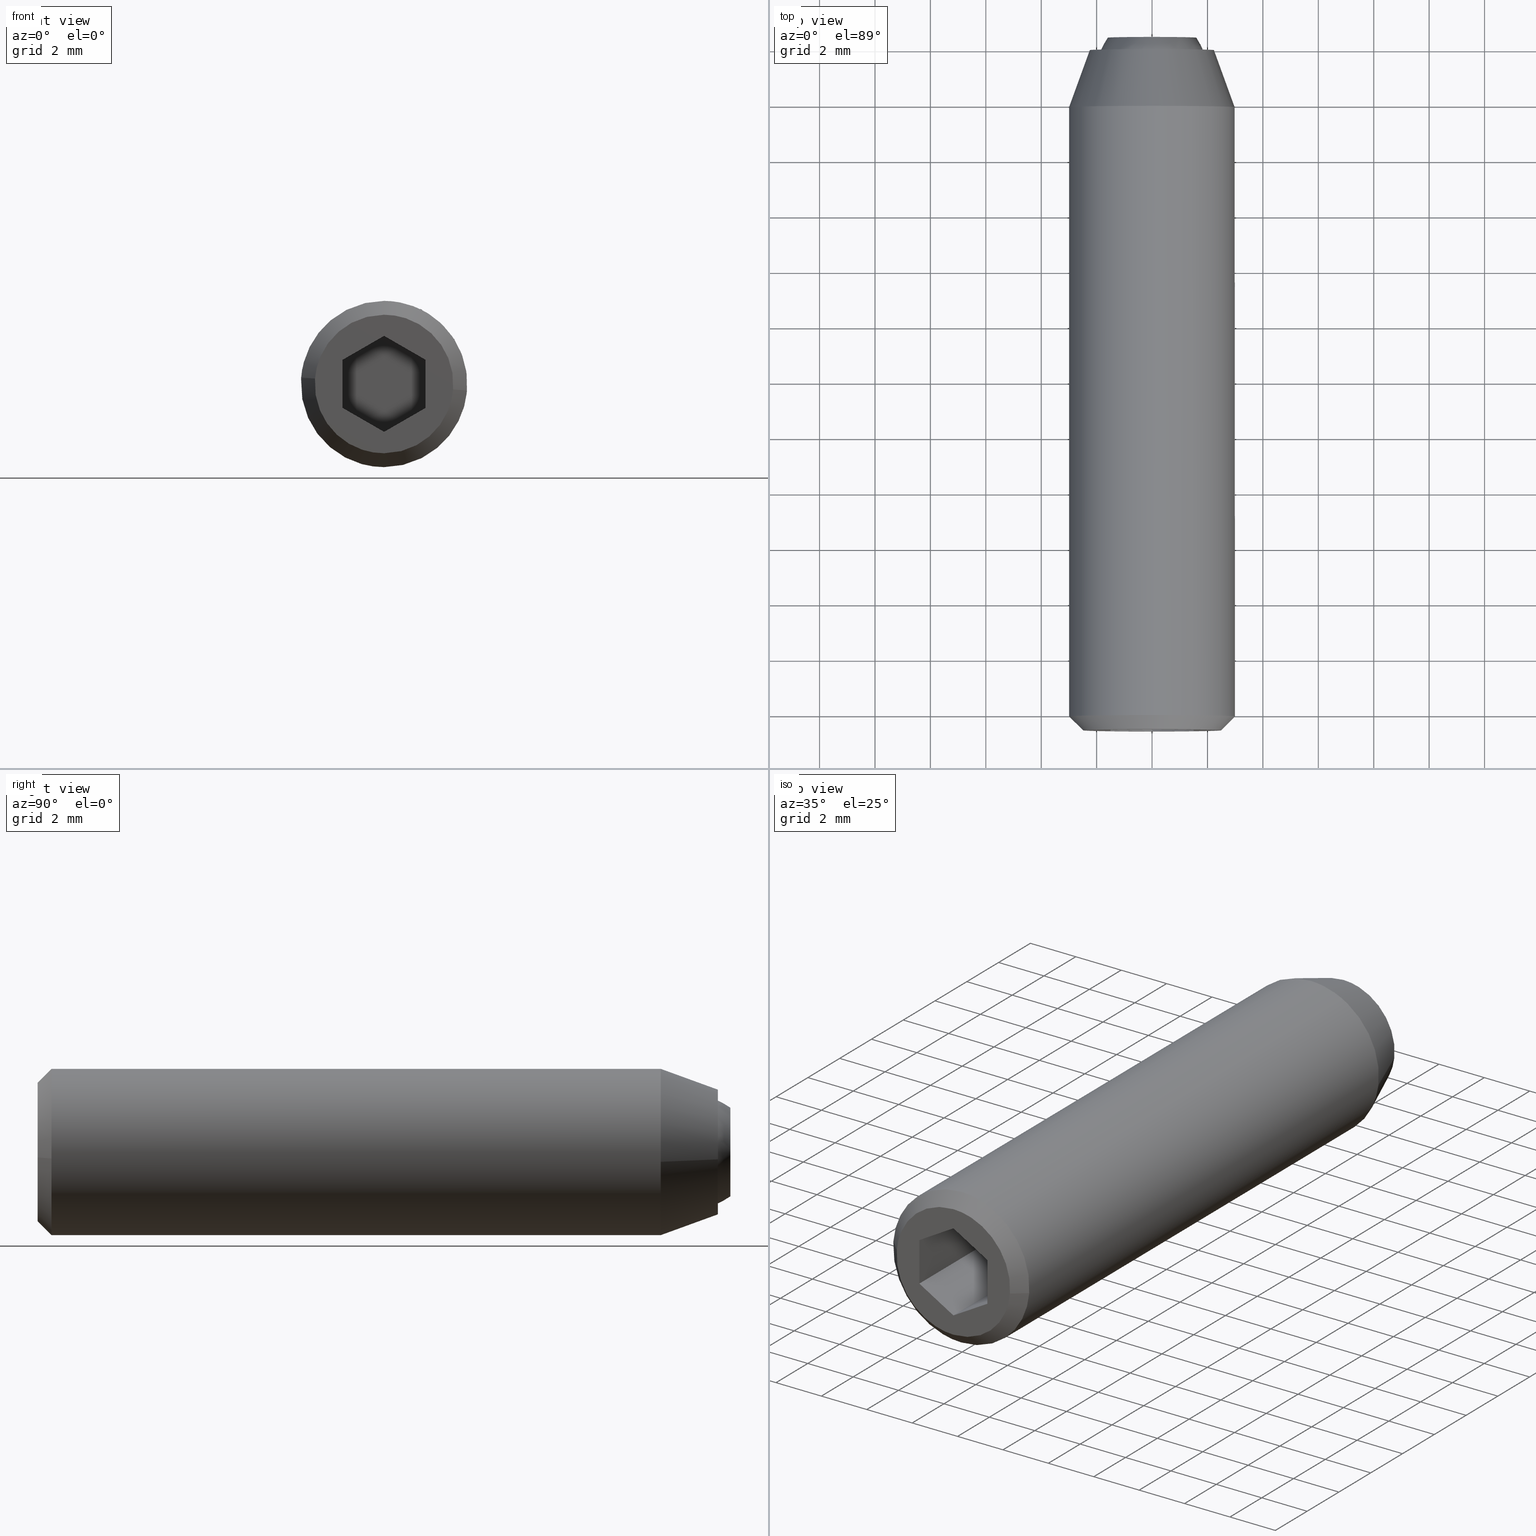
[diagram: canonical four-view strip — front | top / right | iso, engineering-drawing reading convention]
A machine part, canonical four-view strip (front | top / right | iso — engineering-drawing reading convention). The complete STEP part file that produces these views, byte-faithful:
ISO-10303-21;
HEADER;
/****************************************************************
 * Generated by software with PDE/Lib inside                    *
 * PDElib Version 4.4.1-0003, patched  Thursday August 19 11:58 *
 * International Technegroup Inc. (www.iti-oh.com)              *
 ****************************************************************/
FILE_DESCRIPTION((''),'2;1');
FILE_NAME('','2005-07-15T11:42:08',(''),(''),'','CADfix','');
FILE_SCHEMA(('AUTOMOTIVE_DESIGN'));
ENDSEC;
DATA;
#5=APPLICATION_CONTEXT('automotive design');
#6=APPLICATION_PROTOCOL_DEFINITION('Draft International Standard','automotive_design',1998,#5);
#7=PRODUCT_CONTEXT('None',#5,'mechanical');
#8=PRODUCT('body','','None',(#7));
#9=PRODUCT_RELATED_PRODUCT_CATEGORY('part','description',(#8));
#10=PRODUCT_DEFINITION_FORMATION('None','None',#8);
#11=PRODUCT_DEFINITION_CONTEXT('part definition',#5,'design');
#12=PRODUCT_DEFINITION('None','None',#10,#11);
#18=(NAMED_UNIT(*)PLANE_ANGLE_UNIT()SI_UNIT($,.RADIAN.));
#19=DIMENSIONAL_EXPONENTS(0.0,0.0,0.0,0.0,0.0,0.0,0.0);
#20=PLANE_ANGLE_MEASURE_WITH_UNIT(PLANE_ANGLE_MEASURE(0.017453292500000),#18);
#24=(CONVERSION_BASED_UNIT('DEGREE',#20)NAMED_UNIT(#19)PLANE_ANGLE_UNIT());
#28=(NAMED_UNIT(*)SI_UNIT($,.STERADIAN.)SOLID_ANGLE_UNIT());
#32=(LENGTH_UNIT()NAMED_UNIT(*)SI_UNIT(.MILLI.,.METRE.));
#34=UNCERTAINTY_MEASURE_WITH_UNIT(LENGTH_MEASURE(0.001000000000000),#32,'DISTANCE_ACCURACY_VALUE','');
#36=(GEOMETRIC_REPRESENTATION_CONTEXT(3)GLOBAL_UNCERTAINTY_ASSIGNED_CONTEXT((#34))GLOBAL_UNIT_ASSIGNED_CONTEXT((#24,#28,#32))REPRESENTATION_CONTEXT('None','None'));
#37=AXIS2_PLACEMENT_3D('',#38,#39,#40);
#38=CARTESIAN_POINT('',(0.0,0.0,0.0));
#39=DIRECTION('',(0.0,0.0,1.0));
#40=DIRECTION('',(1.0,0.0,0.0));
#41=ADVANCED_BREP_SHAPE_REPRESENTATION('',(#37,#945,#1117),#36);
#42=PRODUCT_DEFINITION_SHAPE('','',#12);
#43=SHAPE_DEFINITION_REPRESENTATION(#42,#41);
#44=CARTESIAN_POINT('',(-1.986019052727332,0.100000000000000,0.236068469313517));
#45=CARTESIAN_POINT('',(-1.992775230897211,0.100000000000000,0.179229457275955));
#46=CARTESIAN_POINT('',(-1.996269596843733,0.100000000000000,0.122097079069714));
#47=CARTESIAN_POINT('',(-2.118366675913447,0.100000000000000,-1.874172517774020));
#48=CARTESIAN_POINT('',(-0.122097079069714,0.100000000000000,-1.996269596843733));
#49=CARTESIAN_POINT('',(1.874172517774020,0.100000000000000,-2.118366675913447));
#50=CARTESIAN_POINT('',(1.996269596843733,0.100000000000000,-0.122097079069714));
#51=CARTESIAN_POINT('',(-1.986019052727332,-4.102500000000001,0.236068469313517));
#52=CARTESIAN_POINT('',(-1.992775230897211,-4.102500000000000,0.179229457275955));
#53=CARTESIAN_POINT('',(-1.996269596843733,-4.102500000000000,0.122097079069714));
#54=CARTESIAN_POINT('',(-2.118366675913447,-4.102499999999999,-1.874172517774020));
#55=CARTESIAN_POINT('',(-0.122097079069714,-4.102500000000000,-1.996269596843733));
#56=CARTESIAN_POINT('',(1.874172517774020,-4.102499999999999,-2.118366675913447));
#57=CARTESIAN_POINT('',(1.996269596843733,-4.102500000000000,-0.122097079069714));
#65=(BOUNDED_SURFACE()B_SPLINE_SURFACE(2,1,((#44,#51),(#45,#52),(#46,#53),(#47,#54),(#48,#55),(#49,#56),(#50,#57)),.UNSPECIFIED.,.F.,.F.,.U.)B_SPLINE_SURFACE_WITH_KNOTS((3,2,2,3),(2,2),(0.0,0.132548339959391,3.446256838944149,6.759965337928908),(0.0,4.202500000000001),.UNSPECIFIED.)GEOMETRIC_REPRESENTATION_ITEM()RATIONAL_B_SPLINE_SURFACE(((0.977505800795127,0.977505800795127),(0.988284271247462,0.988284271247462),(1.0,1.0),(0.707106781186548,0.707106781186548),(1.0,1.0),(0.707106781186548,0.707106781186548),(1.0,1.0)))REPRESENTATION_ITEM('')SURFACE());
#66=CARTESIAN_POINT('',(-1.986019052725252,-4.0,0.236068469331022));
#67=VERTEX_POINT('',#66);
#68=CARTESIAN_POINT('',(0.0,-4.0,-2.0));
#69=VERTEX_POINT('',#68);
#70=CARTESIAN_POINT('',(-1.986019052725252,-4.000000000000001,0.236068469331022));
#71=CARTESIAN_POINT('',(-2.0,-4.0,0.118448239321510));
#72=CARTESIAN_POINT('',(-2.0,-4.0,0.0));
#73=CARTESIAN_POINT('',(-2.000000000000000,-4.000000000000000,-2.000000000000000));
#74=CARTESIAN_POINT('',(0.0,-4.0,-2.0));
#82=(BOUNDED_CURVE()B_SPLINE_CURVE(2,(#70,#71,#72,#73,#74),.UNSPECIFIED.,.F.,.U.)B_SPLINE_CURVE_WITH_KNOTS((3,2,3),(0.229562473512665,0.250000000000000,0.500000000000000),.UNSPECIFIED.)CURVE()GEOMETRIC_REPRESENTATION_ITEM()RATIONAL_B_SPLINE_CURVE((0.956026754182046,0.976055948330157,1.0,0.707106781186548,1.0))REPRESENTATION_ITEM(''));
#83=EDGE_CURVE('',#67,#69,#82,.T.);
#84=ORIENTED_EDGE('',*,*,#83,.T.);
#85=CARTESIAN_POINT('',(1.996269596843128,-4.0,-0.122097079079622));
#86=VERTEX_POINT('',#85);
#87=CARTESIAN_POINT('',(0.0,-4.0,-2.0));
#88=CARTESIAN_POINT('',(1.881412133792676,-4.0,-2.000000000000000));
#89=CARTESIAN_POINT('',(1.996269596843127,-4.000000000000000,-0.122097079079622));
#97=(BOUNDED_CURVE()B_SPLINE_CURVE(2,(#87,#88,#89),.UNSPECIFIED.,.F.,.U.)B_SPLINE_CURVE_WITH_KNOTS((3,3),(0.500000000000000,0.739332962240255),.UNSPECIFIED.)CURVE()GEOMETRIC_REPRESENTATION_ITEM()RATIONAL_B_SPLINE_CURVE((1.0,0.719603993285173,0.976072041669530))REPRESENTATION_ITEM(''));
#98=EDGE_CURVE('',#69,#86,#97,.T.);
#99=ORIENTED_EDGE('',*,*,#98,.T.);
#100=CARTESIAN_POINT('',(1.996269596843128,1.387779E-016,-0.122097079079622));
#101=VERTEX_POINT('',#100);
#102=CARTESIAN_POINT('',(1.996269596843128,1.387779E-016,-0.122097079079622));
#103=CARTESIAN_POINT('',(1.996269596843128,-4.0,-0.122097079079622));
#104=QUASI_UNIFORM_CURVE('',1,(#102,#103),.UNSPECIFIED.,.F.,.U.);
#105=EDGE_CURVE('',#101,#86,#104,.T.);
#106=ORIENTED_EDGE('',*,*,#105,.F.);
#107=CARTESIAN_POINT('',(0.0,0.0,-2.0));
#108=VERTEX_POINT('',#107);
#109=CARTESIAN_POINT('',(0.0,0.0,-2.0));
#110=CARTESIAN_POINT('',(1.881412133792676,0.0,-2.000000000000000));
#111=CARTESIAN_POINT('',(1.996269596843127,1.387779E-016,-0.122097079079622));
#119=(BOUNDED_CURVE()B_SPLINE_CURVE(2,(#109,#110,#111),.UNSPECIFIED.,.F.,.U.)B_SPLINE_CURVE_WITH_KNOTS((3,3),(0.500000000000000,0.739332962240255),.UNSPECIFIED.)CURVE()GEOMETRIC_REPRESENTATION_ITEM()RATIONAL_B_SPLINE_CURVE((1.0,0.719603993285173,0.976072041669530))REPRESENTATION_ITEM(''));
#120=EDGE_CURVE('',#108,#101,#119,.T.);
#121=ORIENTED_EDGE('',*,*,#120,.F.);
#122=CARTESIAN_POINT('',(-1.986019052725252,1.419714E-016,0.236068469331022));
#123=VERTEX_POINT('',#122);
#124=CARTESIAN_POINT('',(-1.986019052725252,1.419714E-016,0.236068469331022));
#125=CARTESIAN_POINT('',(-2.0,0.0,0.118448239321510));
#126=CARTESIAN_POINT('',(-2.0,0.0,0.0));
#127=CARTESIAN_POINT('',(-2.000000000000000,0.0,-2.000000000000000));
#128=CARTESIAN_POINT('',(0.0,0.0,-2.0));
#136=(BOUNDED_CURVE()B_SPLINE_CURVE(2,(#124,#125,#126,#127,#128),.UNSPECIFIED.,.F.,.U.)B_SPLINE_CURVE_WITH_KNOTS((3,2,3),(0.229562473512665,0.250000000000000,0.500000000000000),.UNSPECIFIED.)CURVE()GEOMETRIC_REPRESENTATION_ITEM()RATIONAL_B_SPLINE_CURVE((0.956026754182046,0.976055948330157,1.0,0.707106781186548,1.0))REPRESENTATION_ITEM(''));
#137=EDGE_CURVE('',#123,#108,#136,.T.);
#138=ORIENTED_EDGE('',*,*,#137,.F.);
#139=CARTESIAN_POINT('',(-1.986019052725252,1.419714E-016,0.236068469331022));
#140=CARTESIAN_POINT('',(-1.986019052725252,-4.0,0.236068469331022));
#141=QUASI_UNIFORM_CURVE('',1,(#139,#140),.UNSPECIFIED.,.F.,.U.);
#142=EDGE_CURVE('',#123,#67,#141,.T.);
#143=ORIENTED_EDGE('',*,*,#142,.T.);
#144=EDGE_LOOP('',(#84,#99,#106,#121,#138,#143));
#145=FACE_OUTER_BOUND('',#144,.T.);
#146=ADVANCED_FACE('',(#145),#65,.F.);
#147=CARTESIAN_POINT('',(1.996269596843733,0.100000000000000,-0.122097079069714));
#148=CARTESIAN_POINT('',(2.118366675913447,0.100000000000000,1.874172517774020));
#149=CARTESIAN_POINT('',(0.122097079069714,0.100000000000000,1.996269596843733));
#150=CARTESIAN_POINT('',(-1.763086981679002,0.100000000000000,2.111572393465055));
#151=CARTESIAN_POINT('',(-1.986019052727332,0.100000000000000,0.236068469313517));
#152=CARTESIAN_POINT('',(1.996269596843733,-4.102500000000000,-0.122097079069714));
#153=CARTESIAN_POINT('',(2.118366675913447,-4.102499999999999,1.874172517774020));
#154=CARTESIAN_POINT('',(0.122097079069714,-4.102500000000000,1.996269596843733));
#155=CARTESIAN_POINT('',(-1.763086981679002,-4.102500000000000,2.111572393465055));
#156=CARTESIAN_POINT('',(-1.986019052727332,-4.102500000000001,0.236068469313517));
#164=(BOUNDED_SURFACE()B_SPLINE_SURFACE(2,1,((#147,#152),(#148,#153),(#149,#154),(#150,#155),(#151,#156)),.UNSPECIFIED.,.F.,.F.,.U.)B_SPLINE_SURFACE_WITH_KNOTS((3,2,3),(2,2),(0.0,3.313708498984759,6.494868658010128),(0.0,4.202500000000001),.UNSPECIFIED.)GEOMETRIC_REPRESENTATION_ITEM()RATIONAL_B_SPLINE_SURFACE(((1.0,1.0),(0.707106781186548,0.707106781186548),(1.0,1.0),(0.718822509939086,0.718822509939086),(0.977505800795127,0.977505800795127)))REPRESENTATION_ITEM('')SURFACE());
#165=CARTESIAN_POINT('',(0.0,-4.0,2.0));
#166=VERTEX_POINT('',#165);
#167=CARTESIAN_POINT('',(0.0,-4.0,2.0));
#168=CARTESIAN_POINT('',(-1.776349051871201,-4.0,2.0));
#169=CARTESIAN_POINT('',(-1.986019052725252,-4.000000000000001,0.236068469331022));
#177=(BOUNDED_CURVE()B_SPLINE_CURVE(2,(#167,#168,#169),.UNSPECIFIED.,.F.,.U.)B_SPLINE_CURVE_WITH_KNOTS((3,3),(0.0,0.229562473512665),.UNSPECIFIED.)CURVE()GEOMETRIC_REPRESENTATION_ITEM()RATIONAL_B_SPLINE_CURVE((1.0,0.731050832856391,0.956026754182046))REPRESENTATION_ITEM(''));
#178=EDGE_CURVE('',#166,#67,#177,.T.);
#179=ORIENTED_EDGE('',*,*,#178,.T.);
#180=ORIENTED_EDGE('',*,*,#142,.F.);
#181=CARTESIAN_POINT('',(0.0,0.0,2.0));
#182=VERTEX_POINT('',#181);
#183=CARTESIAN_POINT('',(0.0,0.0,2.0));
#184=CARTESIAN_POINT('',(-1.776349051871201,0.0,2.0));
#185=CARTESIAN_POINT('',(-1.986019052725252,1.419714E-016,0.236068469331022));
#193=(BOUNDED_CURVE()B_SPLINE_CURVE(2,(#183,#184,#185),.UNSPECIFIED.,.F.,.U.)B_SPLINE_CURVE_WITH_KNOTS((3,3),(0.0,0.229562473512665),.UNSPECIFIED.)CURVE()GEOMETRIC_REPRESENTATION_ITEM()RATIONAL_B_SPLINE_CURVE((1.0,0.731050832856391,0.956026754182046))REPRESENTATION_ITEM(''));
#194=EDGE_CURVE('',#182,#123,#193,.T.);
#195=ORIENTED_EDGE('',*,*,#194,.F.);
#196=CARTESIAN_POINT('',(1.996269596843128,1.387779E-016,-0.122097079079622));
#197=CARTESIAN_POINT('',(2.000000000000000,0.0,-0.061105526607113));
#198=CARTESIAN_POINT('',(2.0,0.0,0.0));
#199=CARTESIAN_POINT('',(2.000000000000000,0.0,2.000000000000000));
#200=CARTESIAN_POINT('',(0.0,0.0,2.0));
#208=(BOUNDED_CURVE()B_SPLINE_CURVE(2,(#196,#197,#198,#199,#200),.UNSPECIFIED.,.F.,.U.)B_SPLINE_CURVE_WITH_KNOTS((3,2,3),(0.739332962240256,0.750000000000000,1.0),.UNSPECIFIED.)CURVE()GEOMETRIC_REPRESENTATION_ITEM()RATIONAL_B_SPLINE_CURVE((0.976072041669531,0.987502787901375,1.0,0.707106781186548,1.0))REPRESENTATION_ITEM(''));
#209=EDGE_CURVE('',#101,#182,#208,.T.);
#210=ORIENTED_EDGE('',*,*,#209,.F.);
#211=ORIENTED_EDGE('',*,*,#105,.T.);
#212=CARTESIAN_POINT('',(1.996269596843128,-4.0,-0.122097079079622));
#213=CARTESIAN_POINT('',(2.000000000000000,-4.000000000000001,-0.061105526607114));
#214=CARTESIAN_POINT('',(2.0,-4.0,0.0));
#215=CARTESIAN_POINT('',(2.000000000000000,-4.000000000000000,2.000000000000000));
#216=CARTESIAN_POINT('',(0.0,-4.0,2.0));
#224=(BOUNDED_CURVE()B_SPLINE_CURVE(2,(#212,#213,#214,#215,#216),.UNSPECIFIED.,.F.,.U.)B_SPLINE_CURVE_WITH_KNOTS((3,2,3),(0.739332962240255,0.750000000000000,1.0),.UNSPECIFIED.)CURVE()GEOMETRIC_REPRESENTATION_ITEM()RATIONAL_B_SPLINE_CURVE((0.976072041669531,0.987502787901375,1.0,0.707106781186548,1.0))REPRESENTATION_ITEM(''));
#225=EDGE_CURVE('',#86,#166,#224,.T.);
#226=ORIENTED_EDGE('',*,*,#225,.T.);
#227=EDGE_LOOP('',(#179,#180,#195,#210,#211,#226));
#228=FACE_OUTER_BOUND('',#227,.T.);
#229=ADVANCED_FACE('',(#228),#164,.F.);
#230=CARTESIAN_POINT('',(2.479831867661154,-24.562500000000000,-0.195167000623016));
#231=CARTESIAN_POINT('',(2.284664867038139,-24.562500000000007,-2.674998868284170));
#232=CARTESIAN_POINT('',(-0.195167000623016,-24.562500000000000,-2.479831867661154));
#233=CARTESIAN_POINT('',(-2.674998868284169,-24.562500000000007,-2.284664867038139));
#234=CARTESIAN_POINT('',(-2.479831867661154,-24.562500000000000,0.195167000623016));
#235=CARTESIAN_POINT('',(3.003525004537844,-24.037187500000002,-0.236382544347550));
#236=CARTESIAN_POINT('',(2.767142460190294,-24.037187499999995,-3.239907548885394));
#237=CARTESIAN_POINT('',(-0.236382544347550,-24.037187500000002,-3.003525004537844));
#238=CARTESIAN_POINT('',(-3.239907548885394,-24.037187499999995,-2.767142460190294));
#239=CARTESIAN_POINT('',(-3.003525004537844,-24.037187500000002,0.236382544347550));
#247=(BOUNDED_SURFACE()B_SPLINE_SURFACE(2,1,((#230,#235),(#231,#236),(#232,#237),(#233,#238),(#234,#239)),.UNSPECIFIED.,.F.,.F.,.U.)B_SPLINE_SURFACE_WITH_KNOTS((3,2,3),(2,2),(0.0,4.991791193548771,9.983582387097542),(0.0,1.0),.UNSPECIFIED.)GEOMETRIC_REPRESENTATION_ITEM()RATIONAL_B_SPLINE_SURFACE(((1.0,1.0),(0.707106781186548,0.707106781186548),(1.0,1.0),(0.707106781186548,0.707106781186548),(1.0,1.0)))REPRESENTATION_ITEM('')SURFACE());
#248=CARTESIAN_POINT('',(0.0,-24.050000000000001,-3.0));
#249=VERTEX_POINT('',#248);
#250=CARTESIAN_POINT('',(2.990752001202853,-24.049999999991300,-0.235377287250343));
#251=VERTEX_POINT('',#250);
#252=CARTESIAN_POINT('',(0.0,-24.050000000000001,-3.0));
#253=CARTESIAN_POINT('',(2.773171474851615,-24.050000000000004,-3.000000000000000));
#254=CARTESIAN_POINT('',(2.990752001202853,-24.049999999991304,-0.235377287250343));
#262=(BOUNDED_CURVE()B_SPLINE_CURVE(2,(#252,#253,#254),.UNSPECIFIED.,.F.,.U.)B_SPLINE_CURVE_WITH_KNOTS((3,3),(0.0,0.236331300625187),.UNSPECIFIED.)CURVE()GEOMETRIC_REPRESENTATION_ITEM()RATIONAL_B_SPLINE_CURVE((1.0,0.723120658614078,0.969723356155996))REPRESENTATION_ITEM(''));
#263=EDGE_CURVE('',#249,#251,#262,.T.);
#264=ORIENTED_EDGE('',*,*,#263,.T.);
#265=CARTESIAN_POINT('',(2.492293334333169,-24.549999999999120,-0.196147739326269));
#266=VERTEX_POINT('',#265);
#267=CARTESIAN_POINT('',(2.492293334333169,-24.549999999999120,-0.196147739326269));
#268=CARTESIAN_POINT('',(2.990752001202853,-24.049999999991300,-0.235377287250343));
#269=QUASI_UNIFORM_CURVE('',1,(#267,#268),.UNSPECIFIED.,.F.,.U.);
#270=EDGE_CURVE('',#266,#251,#269,.T.);
#271=ORIENTED_EDGE('',*,*,#270,.F.);
#272=CARTESIAN_POINT('',(0.0,-24.550000000000001,-2.500000000000000));
#273=VERTEX_POINT('',#272);
#274=CARTESIAN_POINT('',(0.0,-24.550000000000001,-2.500000000000000));
#275=CARTESIAN_POINT('',(2.310976229133265,-24.549999999999994,-2.500000000000000));
#276=CARTESIAN_POINT('',(2.492293334333169,-24.549999999999123,-0.196147739326268));
#284=(BOUNDED_CURVE()B_SPLINE_CURVE(2,(#274,#275,#276),.UNSPECIFIED.,.F.,.U.)B_SPLINE_CURVE_WITH_KNOTS((3,3),(0.0,0.236331300631861),.UNSPECIFIED.)CURVE()GEOMETRIC_REPRESENTATION_ITEM()RATIONAL_B_SPLINE_CURVE((1.0,0.723120658606258,0.969723356169924))REPRESENTATION_ITEM(''));
#285=EDGE_CURVE('',#273,#266,#284,.T.);
#286=ORIENTED_EDGE('',*,*,#285,.F.);
#287=CARTESIAN_POINT('',(-2.492293334333169,-24.549999999999130,0.196147739326268));
#288=VERTEX_POINT('',#287);
#289=CARTESIAN_POINT('',(-2.492293334333169,-24.549999999999134,0.196147739326268));
#290=CARTESIAN_POINT('',(-2.500000000000000,-24.549999999999997,0.098225267525791));
#291=CARTESIAN_POINT('',(-2.500000000000000,-24.550000000000001,-1.683834E-016));
#292=CARTESIAN_POINT('',(-2.500000000000000,-24.549999999999997,-2.500000000000000));
#293=CARTESIAN_POINT('',(0.0,-24.550000000000001,-2.500000000000000));
#301=(BOUNDED_CURVE()B_SPLINE_CURVE(2,(#289,#290,#291,#292,#293),.UNSPECIFIED.,.F.,.U.)B_SPLINE_CURVE_WITH_KNOTS((3,2,3),(0.736331300631861,0.750000000000000,1.0),.UNSPECIFIED.)CURVE()GEOMETRIC_REPRESENTATION_ITEM()RATIONAL_B_SPLINE_CURVE((0.969723356169925,0.983986122580289,1.0,0.707106781186548,1.0))REPRESENTATION_ITEM(''));
#302=EDGE_CURVE('',#288,#273,#301,.T.);
#303=ORIENTED_EDGE('',*,*,#302,.F.);
#304=CARTESIAN_POINT('',(-2.990752001202426,-24.049999999992380,0.235377287242007));
#305=VERTEX_POINT('',#304);
#306=CARTESIAN_POINT('',(-2.492293334333169,-24.549999999999130,0.196147739326268));
#307=CARTESIAN_POINT('',(-2.990752001202426,-24.049999999992380,0.235377287242007));
#308=QUASI_UNIFORM_CURVE('',1,(#306,#307),.UNSPECIFIED.,.F.,.U.);
#309=EDGE_CURVE('',#288,#305,#308,.T.);
#310=ORIENTED_EDGE('',*,*,#309,.T.);
#311=CARTESIAN_POINT('',(-2.994404501233572,-24.049999999999990,0.183143886027102));
#312=VERTEX_POINT('',#311);
#313=CARTESIAN_POINT('',(-2.990752001202426,-24.049999999992380,0.235377287242007));
#314=CARTESIAN_POINT('',(-2.992806175762464,-24.049999999999997,0.209276524634115));
#315=CARTESIAN_POINT('',(-2.994404501233571,-24.049999999999994,0.183143886027102));
#323=(BOUNDED_CURVE()B_SPLINE_CURVE(2,(#313,#314,#315),.UNSPECIFIED.,.F.,.U.)B_SPLINE_CURVE_WITH_KNOTS((3,3),(0.736331300626133,0.739333062078418),.UNSPECIFIED.)CURVE()GEOMETRIC_REPRESENTATION_ITEM()RATIONAL_B_SPLINE_CURVE((0.969723356157970,0.972855579733768,0.976072255641811))REPRESENTATION_ITEM(''));
#324=EDGE_CURVE('',#305,#312,#323,.T.);
#325=ORIENTED_EDGE('',*,*,#324,.T.);
#326=CARTESIAN_POINT('',(-2.994404501233571,-24.049999999999994,0.183143886027102));
#327=CARTESIAN_POINT('',(-3.000000000000000,-24.049999999999997,0.091657421178081));
#328=CARTESIAN_POINT('',(-3.0,-24.050000000000001,-1.683834E-016));
#329=CARTESIAN_POINT('',(-3.0,-24.050000000000004,-3.0));
#330=CARTESIAN_POINT('',(0.0,-24.050000000000001,-3.0));
#338=(BOUNDED_CURVE()B_SPLINE_CURVE(2,(#326,#327,#328,#329,#330),.UNSPECIFIED.,.F.,.U.)B_SPLINE_CURVE_WITH_KNOTS((3,2,3),(0.739333062078418,0.750000000000000,1.0),.UNSPECIFIED.)CURVE()GEOMETRIC_REPRESENTATION_ITEM()RATIONAL_B_SPLINE_CURVE((0.976072255641811,0.987502904869058,1.0,0.707106781186548,1.0))REPRESENTATION_ITEM(''));
#339=EDGE_CURVE('',#312,#249,#338,.T.);
#340=ORIENTED_EDGE('',*,*,#339,.T.);
#341=EDGE_LOOP('',(#264,#271,#286,#303,#310,#325,#340));
#342=FACE_OUTER_BOUND('',#341,.T.);
#343=ADVANCED_FACE('',(#342),#247,.T.);
#344=CARTESIAN_POINT('',(-2.479831867661154,-24.562500000000000,0.195167000623016));
#345=CARTESIAN_POINT('',(-2.284664867038139,-24.562500000000007,2.674998868284169));
#346=CARTESIAN_POINT('',(0.195167000623016,-24.562500000000000,2.479831867661154));
#347=CARTESIAN_POINT('',(2.674998868284169,-24.562500000000007,2.284664867038138));
#348=CARTESIAN_POINT('',(2.479831867661154,-24.562500000000000,-0.195167000623016));
#349=CARTESIAN_POINT('',(-3.003525004537844,-24.037187500000002,0.236382544347550));
#350=CARTESIAN_POINT('',(-2.767142460190294,-24.037187499999995,3.239907548885394));
#351=CARTESIAN_POINT('',(0.236382544347550,-24.037187500000002,3.003525004537844));
#352=CARTESIAN_POINT('',(3.239907548885394,-24.037187499999995,2.767142460190294));
#353=CARTESIAN_POINT('',(3.003525004537844,-24.037187500000002,-0.236382544347550));
#361=(BOUNDED_SURFACE()B_SPLINE_SURFACE(2,1,((#344,#349),(#345,#350),(#346,#351),(#347,#352),(#348,#353)),.UNSPECIFIED.,.F.,.F.,.U.)B_SPLINE_SURFACE_WITH_KNOTS((3,2,3),(2,2),(0.0,4.991791193548771,9.983582387097542),(0.0,1.0),.UNSPECIFIED.)GEOMETRIC_REPRESENTATION_ITEM()RATIONAL_B_SPLINE_SURFACE(((1.0,1.0),(0.707106781186548,0.707106781186548),(1.0,1.0),(0.707106781186548,0.707106781186548),(1.0,1.0)))REPRESENTATION_ITEM('')SURFACE());
#362=CARTESIAN_POINT('',(1.054851423446795,-24.049999999999990,2.808431675231772));
#363=VERTEX_POINT('',#362);
#364=CARTESIAN_POINT('',(2.990752001202853,-24.049999999991300,-0.235377287250343));
#365=CARTESIAN_POINT('',(3.000000000000000,-24.049999999999997,-0.117870321089440));
#366=CARTESIAN_POINT('',(3.0,-24.050000000000001,-1.683834E-016));
#367=CARTESIAN_POINT('',(2.999999999999999,-24.050000000000001,2.077830762670937));
#368=CARTESIAN_POINT('',(1.054851423446795,-24.049999999999990,2.808431675231772));
#376=(BOUNDED_CURVE()B_SPLINE_CURVE(2,(#364,#365,#366,#367,#368),.UNSPECIFIED.,.F.,.U.)B_SPLINE_CURVE_WITH_KNOTS((3,2,3),(0.236331300625187,0.250000000000000,0.440284311486916),.UNSPECIFIED.)CURVE()GEOMETRIC_REPRESENTATION_ITEM()RATIONAL_B_SPLINE_CURVE((0.969723356155996,0.983986122572470,1.0,0.777068062075583,0.893499726682298))REPRESENTATION_ITEM(''));
#377=EDGE_CURVE('',#251,#363,#376,.T.);
#378=ORIENTED_EDGE('',*,*,#377,.T.);
#379=CARTESIAN_POINT('',(0.0,-24.050000000000001,3.0));
#380=VERTEX_POINT('',#379);
#381=CARTESIAN_POINT('',(1.054851423446795,-24.049999999999990,2.808431675231772));
#382=CARTESIAN_POINT('',(0.544820779046998,-24.049999999999997,3.000000000000001));
#383=CARTESIAN_POINT('',(0.0,-24.050000000000001,3.0));
#391=(BOUNDED_CURVE()B_SPLINE_CURVE(2,(#381,#382,#383),.UNSPECIFIED.,.F.,.U.)B_SPLINE_CURVE_WITH_KNOTS((3,3),(0.440284311486916,0.500000000000000),.UNSPECIFIED.)CURVE()GEOMETRIC_REPRESENTATION_ITEM()RATIONAL_B_SPLINE_CURVE((0.893499726682298,0.930038719110965,1.0))REPRESENTATION_ITEM(''));
#392=EDGE_CURVE('',#363,#380,#391,.T.);
#393=ORIENTED_EDGE('',*,*,#392,.T.);
#394=CARTESIAN_POINT('',(0.0,-24.050000000000001,3.0));
#395=CARTESIAN_POINT('',(-2.773171474866982,-24.050000000000008,3.000000000000001));
#396=CARTESIAN_POINT('',(-2.990752001202426,-24.049999999992373,0.235377287242007));
#404=(BOUNDED_CURVE()B_SPLINE_CURVE(2,(#394,#395,#396),.UNSPECIFIED.,.F.,.U.)B_SPLINE_CURVE_WITH_KNOTS((3,3),(0.500000000000000,0.736331300626134),.UNSPECIFIED.)CURVE()GEOMETRIC_REPRESENTATION_ITEM()RATIONAL_B_SPLINE_CURVE((1.0,0.723120658612968,0.969723356157972))REPRESENTATION_ITEM(''));
#405=EDGE_CURVE('',#380,#305,#404,.T.);
#406=ORIENTED_EDGE('',*,*,#405,.T.);
#407=ORIENTED_EDGE('',*,*,#309,.F.);
#408=CARTESIAN_POINT('',(0.0,-24.550000000000001,2.500000000000000));
#409=VERTEX_POINT('',#408);
#410=CARTESIAN_POINT('',(0.0,-24.550000000000001,2.500000000000000));
#411=CARTESIAN_POINT('',(-2.310976229133256,-24.550000000000001,2.500000000000000));
#412=CARTESIAN_POINT('',(-2.492293334333169,-24.549999999999127,0.196147739326268));
#420=(BOUNDED_CURVE()B_SPLINE_CURVE(2,(#410,#411,#412),.UNSPECIFIED.,.F.,.U.)B_SPLINE_CURVE_WITH_KNOTS((3,3),(0.500000000000000,0.736331300631860),.UNSPECIFIED.)CURVE()GEOMETRIC_REPRESENTATION_ITEM()RATIONAL_B_SPLINE_CURVE((1.0,0.723120658606259,0.969723356169923))REPRESENTATION_ITEM(''));
#421=EDGE_CURVE('',#409,#288,#420,.T.);
#422=ORIENTED_EDGE('',*,*,#421,.F.);
#423=CARTESIAN_POINT('',(2.492293334333170,-24.549999999999120,-0.196147739326269));
#424=CARTESIAN_POINT('',(2.500000000000000,-24.550000000000001,-0.098225267525792));
#425=CARTESIAN_POINT('',(2.500000000000000,-24.550000000000001,-1.683834E-016));
#426=CARTESIAN_POINT('',(2.500000000000000,-24.549999999999997,2.500000000000000));
#427=CARTESIAN_POINT('',(0.0,-24.550000000000001,2.500000000000000));
#435=(BOUNDED_CURVE()B_SPLINE_CURVE(2,(#423,#424,#425,#426,#427),.UNSPECIFIED.,.F.,.U.)B_SPLINE_CURVE_WITH_KNOTS((3,2,3),(0.236331300631861,0.250000000000000,0.500000000000000),.UNSPECIFIED.)CURVE()GEOMETRIC_REPRESENTATION_ITEM()RATIONAL_B_SPLINE_CURVE((0.969723356169924,0.983986122580289,1.0,0.707106781186548,1.0))REPRESENTATION_ITEM(''));
#436=EDGE_CURVE('',#266,#409,#435,.T.);
#437=ORIENTED_EDGE('',*,*,#436,.F.);
#438=ORIENTED_EDGE('',*,*,#270,.T.);
#439=EDGE_LOOP('',(#378,#393,#406,#407,#422,#437,#438));
#440=FACE_OUTER_BOUND('',#439,.T.);
#441=ADVANCED_FACE('',(#440),#361,.T.);
#442=CARTESIAN_POINT('',(1.054853923174716,-1.510873199999999,2.808430736329971));
#443=CARTESIAN_POINT('',(0.632968355146225,-1.510873199999999,2.966892058095451));
#444=CARTESIAN_POINT('',(0.183145618604571,-1.510873199999999,2.994404395265600));
#445=CARTESIAN_POINT('',(-2.811258776661029,-1.510873199999999,3.177550013870171));
#446=CARTESIAN_POINT('',(-2.994404395265600,-1.510873199999999,0.183145618604571));
#447=CARTESIAN_POINT('',(1.054853923174716,-24.613478170000004,2.808430736329971));
#448=CARTESIAN_POINT('',(0.632968355146225,-24.613478170000000,2.966892058095451));
#449=CARTESIAN_POINT('',(0.183145618604571,-24.613478170000000,2.994404395265600));
#450=CARTESIAN_POINT('',(-2.811258776661029,-24.613478170000004,3.177550013870171));
#451=CARTESIAN_POINT('',(-2.994404395265600,-24.613478170000000,0.183145618604571));
#459=(BOUNDED_SURFACE()B_SPLINE_SURFACE(2,1,((#442,#447),(#443,#448),(#444,#449),(#445,#450),(#446,#451)),.UNSPECIFIED.,.F.,.F.,.U.)B_SPLINE_SURFACE_WITH_KNOTS((3,2,3),(2,2),(0.0,0.994112549695428,5.964675298172567),(0.0,23.102604970000009),.UNSPECIFIED.)GEOMETRIC_REPRESENTATION_ITEM()RATIONAL_B_SPLINE_SURFACE(((0.906274169979695,0.906274169979695),(0.941421356237309,0.941421356237309),(1.0,1.0),(0.707106781186548,0.707106781186548),(1.0,1.0)))REPRESENTATION_ITEM('')SURFACE());
#460=CARTESIAN_POINT('',(1.054853923177952,-2.060608000000000,2.808430736328756));
#461=VERTEX_POINT('',#460);
#462=CARTESIAN_POINT('',(0.0,-2.060608000000000,3.0));
#463=VERTEX_POINT('',#462);
#464=CARTESIAN_POINT('',(1.054853923177952,-2.060608000000000,2.808430736328756));
#465=CARTESIAN_POINT('',(0.544822158203853,-2.060608000000000,3.000000000000000));
#466=CARTESIAN_POINT('',(0.0,-2.060608000000000,3.0));
#474=(BOUNDED_CURVE()B_SPLINE_CURVE(2,(#464,#465,#466),.UNSPECIFIED.,.F.,.U.)B_SPLINE_CURVE_WITH_KNOTS((3,3),(0.440284170898545,0.500000000000000),.UNSPECIFIED.)CURVE()GEOMETRIC_REPRESENTATION_ITEM()RATIONAL_B_SPLINE_CURVE((0.893499554635320,0.930038554401444,1.0))REPRESENTATION_ITEM(''));
#475=EDGE_CURVE('',#461,#463,#474,.T.);
#476=ORIENTED_EDGE('',*,*,#475,.T.);
#477=CARTESIAN_POINT('',(-2.994404181319607,-2.060606530119079,0.183144734762803));
#478=VERTEX_POINT('',#477);
#479=CARTESIAN_POINT('',(0.0,-2.060608000000000,3.0));
#480=CARTESIAN_POINT('',(-2.822118886340415,-2.060607265059540,2.999999991834673));
#481=CARTESIAN_POINT('',(-2.994404181319607,-2.060606530119080,0.183144734762803));
#489=(BOUNDED_CURVE()B_SPLINE_CURVE(2,(#479,#480,#481),.UNSPECIFIED.,.F.,.U.)B_SPLINE_CURVE_WITH_KNOTS((3,3),(0.500000000000000,0.739333012230629),.UNSPECIFIED.)CURVE()GEOMETRIC_REPRESENTATION_ITEM()RATIONAL_B_SPLINE_CURVE((1.0,0.719603934717807,0.976072148808440))REPRESENTATION_ITEM(''));
#490=EDGE_CURVE('',#463,#478,#489,.T.);
#491=ORIENTED_EDGE('',*,*,#490,.T.);
#492=CARTESIAN_POINT('',(-2.994404181319607,-2.060606530119079,0.183144734762803));
#493=CARTESIAN_POINT('',(-2.994404501233572,-24.049999999999990,0.183143886027102));
#494=QUASI_UNIFORM_CURVE('',1,(#492,#493),.UNSPECIFIED.,.F.,.U.);
#495=EDGE_CURVE('',#478,#312,#494,.T.);
#496=ORIENTED_EDGE('',*,*,#495,.T.);
#497=ORIENTED_EDGE('',*,*,#324,.F.);
#498=ORIENTED_EDGE('',*,*,#405,.F.);
#499=ORIENTED_EDGE('',*,*,#392,.F.);
#500=CARTESIAN_POINT('',(1.054853923177952,-2.060608000000000,2.808430736328756));
#501=CARTESIAN_POINT('',(1.054851423446795,-24.049999999999990,2.808431675231772));
#502=QUASI_UNIFORM_CURVE('',1,(#500,#501),.UNSPECIFIED.,.F.,.U.);
#503=EDGE_CURVE('',#461,#363,#502,.T.);
#504=ORIENTED_EDGE('',*,*,#503,.F.);
#505=EDGE_LOOP('',(#476,#491,#496,#497,#498,#499,#504));
#506=FACE_OUTER_BOUND('',#505,.T.);
#507=ADVANCED_FACE('',(#506),#459,.T.);
#508=CARTESIAN_POINT('',(-2.994404395265600,-1.510873199999999,0.183145618604571));
#509=CARTESIAN_POINT('',(-3.177550013870171,-1.510873199999999,-2.811258776661029));
#510=CARTESIAN_POINT('',(-0.183145618604571,-1.510873199999999,-2.994404395265600));
#511=CARTESIAN_POINT('',(2.811258776661029,-1.510873199999999,-3.177550013870172));
#512=CARTESIAN_POINT('',(2.994404395265600,-1.510873199999999,-0.183145618604571));
#513=CARTESIAN_POINT('',(3.129711668608025,-1.510873199999999,2.029108745409195));
#514=CARTESIAN_POINT('',(1.054853923174716,-1.510873199999999,2.808430736329971));
#515=CARTESIAN_POINT('',(-2.994404395265600,-24.613478170000000,0.183145618604571));
#516=CARTESIAN_POINT('',(-3.177550013870171,-24.613478170000004,-2.811258776661029));
#517=CARTESIAN_POINT('',(-0.183145618604571,-24.613478170000000,-2.994404395265600));
#518=CARTESIAN_POINT('',(2.811258776661029,-24.613478170000004,-3.177550013870172));
#519=CARTESIAN_POINT('',(2.994404395265600,-24.613478170000000,-0.183145618604571));
#520=CARTESIAN_POINT('',(3.129711668608025,-24.613478170000008,2.029108745409195));
#521=CARTESIAN_POINT('',(1.054853923174716,-24.613478170000004,2.808430736329971));
#529=(BOUNDED_SURFACE()B_SPLINE_SURFACE(2,1,((#508,#515),(#509,#516),(#510,#517),(#511,#518),(#512,#519),(#513,#520),(#514,#521)),.UNSPECIFIED.,.F.,.F.,.U.)B_SPLINE_SURFACE_WITH_KNOTS((3,2,2,3),(2,2),(0.0,4.970562748477139,9.941125496954278,13.917575695735991),(0.0,23.102604970000009),.UNSPECIFIED.)GEOMETRIC_REPRESENTATION_ITEM()RATIONAL_B_SPLINE_SURFACE(((1.0,1.0),(0.707106781186548,0.707106781186548),(1.0,1.0),(0.707106781186548,0.707106781186548),(1.0,1.0),(0.765685424949238,0.765685424949238),(0.906274169979695,0.906274169979695)))REPRESENTATION_ITEM('')SURFACE());
#530=CARTESIAN_POINT('',(2.979028579089626,-2.060608000005122,-0.354102703997646));
#531=VERTEX_POINT('',#530);
#532=CARTESIAN_POINT('',(2.979028579089626,-2.060608000005121,-0.354102703997646));
#533=CARTESIAN_POINT('',(3.000000000000000,-2.060608000000000,-0.177672358983168));
#534=CARTESIAN_POINT('',(3.0,-2.060608000000000,-1.683834E-016));
#535=CARTESIAN_POINT('',(3.000000000000000,-2.060607999999999,2.077828787078143));
#536=CARTESIAN_POINT('',(1.054853923177952,-2.060608000000001,2.808430736328757));
#544=(BOUNDED_CURVE()B_SPLINE_CURVE(2,(#532,#533,#534,#535,#536),.UNSPECIFIED.,.F.,.U.)B_SPLINE_CURVE_WITH_KNOTS((3,2,3),(0.229562473512564,0.250000000000000,0.440284170898545),.UNSPECIFIED.)CURVE()GEOMETRIC_REPRESENTATION_ITEM()RATIONAL_B_SPLINE_CURVE((0.956026754181848,0.976055948330038,1.0,0.777068226785104,0.893499554635320))REPRESENTATION_ITEM(''));
#545=EDGE_CURVE('',#531,#461,#544,.T.);
#546=ORIENTED_EDGE('',*,*,#545,.T.);
#547=ORIENTED_EDGE('',*,*,#503,.T.);
#548=ORIENTED_EDGE('',*,*,#377,.F.);
#549=ORIENTED_EDGE('',*,*,#263,.F.);
#550=ORIENTED_EDGE('',*,*,#339,.F.);
#551=ORIENTED_EDGE('',*,*,#495,.F.);
#552=CARTESIAN_POINT('',(0.0,-2.060608000000000,-3.0));
#553=VERTEX_POINT('',#552);
#554=CARTESIAN_POINT('',(-2.994404181319607,-2.060606530119080,0.183144734762803));
#555=CARTESIAN_POINT('',(-2.999999736831882,-2.060606551242034,0.091657838828033));
#556=CARTESIAN_POINT('',(-2.999999740910735,-2.060606573696389,-0.000000015846503));
#557=CARTESIAN_POINT('',(-2.999999874413295,-2.060607308636849,-3.000000007681176));
#558=CARTESIAN_POINT('',(0.0,-2.060608000000000,-3.0));
#566=(BOUNDED_CURVE()B_SPLINE_CURVE(2,(#554,#555,#556,#557,#558),.UNSPECIFIED.,.F.,.U.)B_SPLINE_CURVE_WITH_KNOTS((3,2,3),(0.739333012230629,0.750000000000000,1.0),.UNSPECIFIED.)CURVE()GEOMETRIC_REPRESENTATION_ITEM()RATIONAL_B_SPLINE_CURVE((0.976072148808440,0.987502846468741,1.0,0.707106781186548,1.0))REPRESENTATION_ITEM(''));
#567=EDGE_CURVE('',#478,#553,#566,.T.);
#568=ORIENTED_EDGE('',*,*,#567,.T.);
#569=CARTESIAN_POINT('',(0.0,-2.060608000000000,-3.0));
#570=CARTESIAN_POINT('',(2.664523577805195,-2.060607999999999,-3.000000000000000));
#571=CARTESIAN_POINT('',(2.979028579089626,-2.060608000005122,-0.354102703997646));
#579=(BOUNDED_CURVE()B_SPLINE_CURVE(2,(#569,#570,#571),.UNSPECIFIED.,.F.,.U.)B_SPLINE_CURVE_WITH_KNOTS((3,3),(0.0,0.229562473512564),.UNSPECIFIED.)CURVE()GEOMETRIC_REPRESENTATION_ITEM()RATIONAL_B_SPLINE_CURVE((1.0,0.731050832856509,0.956026754181848))REPRESENTATION_ITEM(''));
#580=EDGE_CURVE('',#553,#531,#579,.T.);
#581=ORIENTED_EDGE('',*,*,#580,.T.);
#582=EDGE_LOOP('',(#546,#547,#548,#549,#550,#551,#568,#581));
#583=FACE_OUTER_BOUND('',#582,.T.);
#584=ADVANCED_FACE('',(#583),#529,.T.);
#585=CARTESIAN_POINT('',(2.215652505698930,0.051515200000000,-0.263363886077892));
#586=CARTESIAN_POINT('',(2.223189866969700,0.051515200000000,-0.199952863273488));
#587=CARTESIAN_POINT('',(2.227088268978790,0.051515200000000,-0.136214553837150));
#588=CARTESIAN_POINT('',(2.363302822815940,0.051515200000000,2.090873715141639));
#589=CARTESIAN_POINT('',(0.136214553837150,0.051515200000000,2.227088268978790));
#590=CARTESIAN_POINT('',(-2.090873715141639,0.051515200000000,2.363302822815939));
#591=CARTESIAN_POINT('',(-2.227088268978790,0.051515200000000,0.136214553837150));
#592=CARTESIAN_POINT('',(2.998112980925805,-2.113411080000001,-0.356371174417586));
#593=CARTESIAN_POINT('',(3.008312170830224,-2.113411080000000,-0.270566468979945));
#594=CARTESIAN_POINT('',(3.013587298422775,-2.113411080000000,-0.184318895223757));
#595=CARTESIAN_POINT('',(3.197906193646531,-2.113411080000000,2.829268403199018));
#596=CARTESIAN_POINT('',(0.184318895223757,-2.113411080000000,3.013587298422775));
#597=CARTESIAN_POINT('',(-2.829268403199018,-2.113411080000000,3.197906193646531));
#598=CARTESIAN_POINT('',(-3.013587298422775,-2.113411080000000,0.184318895223757));
#606=(BOUNDED_SURFACE()B_SPLINE_SURFACE(2,1,((#585,#592),(#586,#593),(#587,#594),(#588,#595),(#589,#596),(#590,#597),(#591,#598)),.UNSPECIFIED.,.F.,.F.,.U.)B_SPLINE_SURFACE_WITH_KNOTS((3,2,2,3),(2,2),(0.0,0.200096216643384,5.202501632727962,10.204907048812540),(0.0,2.303866434672638),.UNSPECIFIED.)GEOMETRIC_REPRESENTATION_ITEM()RATIONAL_B_SPLINE_SURFACE(((0.977505800795127,0.977505800795127),(0.988284271247462,0.988284271247462),(1.0,1.0),(0.707106781186548,0.707106781186548),(1.0,1.0),(0.707106781186548,0.707106781186548),(1.0,1.0)))REPRESENTATION_ITEM('')SURFACE());
#607=ORIENTED_EDGE('',*,*,#545,.F.);
#608=CARTESIAN_POINT('',(2.234271434317917,-1.242690E-012,-0.265577027984335));
#609=VERTEX_POINT('',#608);
#610=CARTESIAN_POINT('',(2.234271434317917,-1.242690E-012,-0.265577027984335));
#611=CARTESIAN_POINT('',(2.979028579089626,-2.060608000005122,-0.354102703997646));
#612=QUASI_UNIFORM_CURVE('',1,(#610,#611),.UNSPECIFIED.,.F.,.U.);
#613=EDGE_CURVE('',#609,#531,#612,.T.);
#614=ORIENTED_EDGE('',*,*,#613,.F.);
#615=CARTESIAN_POINT('',(0.0,0.0,2.250000000000000));
#616=VERTEX_POINT('',#615);
#617=CARTESIAN_POINT('',(2.234271434317918,-1.242690E-012,-0.265577027984335));
#618=CARTESIAN_POINT('',(2.250000000000000,0.0,-0.133254269223442));
#619=CARTESIAN_POINT('',(2.250000000000000,0.0,-1.683834E-016));
#620=CARTESIAN_POINT('',(2.250000000000000,0.0,2.250000000000000));
#621=CARTESIAN_POINT('',(0.0,0.0,2.250000000000000));
#629=(BOUNDED_CURVE()B_SPLINE_CURVE(2,(#617,#618,#619,#620,#621),.UNSPECIFIED.,.F.,.U.)B_SPLINE_CURVE_WITH_KNOTS((3,2,3),(0.229562473514650,0.250000000000000,0.500000000000000),.UNSPECIFIED.)CURVE()GEOMETRIC_REPRESENTATION_ITEM()RATIONAL_B_SPLINE_CURVE((0.956026754185936,0.976055948332482,1.0,0.707106781186547,1.0))REPRESENTATION_ITEM(''));
#630=EDGE_CURVE('',#609,#616,#629,.T.);
#631=ORIENTED_EDGE('',*,*,#630,.T.);
#632=CARTESIAN_POINT('',(-2.245803296449272,-2.405406E-012,0.137359213966598));
#633=VERTEX_POINT('',#632);
#634=CARTESIAN_POINT('',(0.0,0.0,2.250000000000000));
#635=CARTESIAN_POINT('',(-2.116588650513048,0.0,2.250000000000000));
#636=CARTESIAN_POINT('',(-2.245803296449272,-2.405406E-012,0.137359213966598));
#644=(BOUNDED_CURVE()B_SPLINE_CURVE(2,(#634,#635,#636),.UNSPECIFIED.,.F.,.U.)B_SPLINE_CURVE_WITH_KNOTS((3,3),(0.500000000000000,0.739332962239953),.UNSPECIFIED.)CURVE()GEOMETRIC_REPRESENTATION_ITEM()RATIONAL_B_SPLINE_CURVE((1.0,0.719603993285526,0.976072041668883))REPRESENTATION_ITEM(''));
#645=EDGE_CURVE('',#616,#633,#644,.T.);
#646=ORIENTED_EDGE('',*,*,#645,.T.);
#647=CARTESIAN_POINT('',(-2.245803296449272,-2.405406E-012,0.137359213966598));
#648=CARTESIAN_POINT('',(-2.994404181319607,-2.060606530119079,0.183144734762803));
#649=QUASI_UNIFORM_CURVE('',1,(#647,#648),.UNSPECIFIED.,.F.,.U.);
#650=EDGE_CURVE('',#633,#478,#649,.T.);
#651=ORIENTED_EDGE('',*,*,#650,.T.);
#652=ORIENTED_EDGE('',*,*,#490,.F.);
#653=ORIENTED_EDGE('',*,*,#475,.F.);
#654=EDGE_LOOP('',(#607,#614,#631,#646,#651,#652,#653));
#655=FACE_OUTER_BOUND('',#654,.T.);
#656=ADVANCED_FACE('',(#655),#606,.T.);
#657=CARTESIAN_POINT('',(-2.227088268978790,0.051515200000000,0.136214553837150));
#658=CARTESIAN_POINT('',(-2.363302822815940,0.051515200000000,-2.090873715141641));
#659=CARTESIAN_POINT('',(-0.136214553837150,0.051515200000000,-2.227088268978790));
#660=CARTESIAN_POINT('',(1.966943913935636,0.051515200000000,-2.355722951459452));
#661=CARTESIAN_POINT('',(2.215652505698930,0.051515200000000,-0.263363886077892));
#662=CARTESIAN_POINT('',(-3.013587298422775,-2.113411080000000,0.184318895223757));
#663=CARTESIAN_POINT('',(-3.197906193646531,-2.113411080000000,-2.829268403199018));
#664=CARTESIAN_POINT('',(-0.184318895223757,-2.113411080000000,-3.013587298422775));
#665=CARTESIAN_POINT('',(2.661572636483080,-2.113411080000000,-3.187649481166041));
#666=CARTESIAN_POINT('',(2.998112980925805,-2.113411080000001,-0.356371174417586));
#674=(BOUNDED_SURFACE()B_SPLINE_SURFACE(2,1,((#657,#662),(#658,#663),(#659,#664),(#660,#665),(#661,#666)),.UNSPECIFIED.,.F.,.F.,.U.)B_SPLINE_SURFACE_WITH_KNOTS((3,2,3),(2,2),(0.0,5.002405416084579,9.804714615525775),(0.0,2.303866434672638),.UNSPECIFIED.)GEOMETRIC_REPRESENTATION_ITEM()RATIONAL_B_SPLINE_SURFACE(((1.0,1.0),(0.707106781186548,0.707106781186548),(1.0,1.0),(0.718822509939086,0.718822509939086),(0.977505800795127,0.977505800795127)))REPRESENTATION_ITEM('')SURFACE());
#675=ORIENTED_EDGE('',*,*,#580,.F.);
#676=ORIENTED_EDGE('',*,*,#567,.F.);
#677=ORIENTED_EDGE('',*,*,#650,.F.);
#678=CARTESIAN_POINT('',(0.0,0.0,-2.250000000000000));
#679=VERTEX_POINT('',#678);
#680=CARTESIAN_POINT('',(-2.245803296449272,-2.405406E-012,0.137359213966598));
#681=CARTESIAN_POINT('',(-2.250000000000000,0.0,0.068743717434978));
#682=CARTESIAN_POINT('',(-2.250000000000000,0.0,-1.683834E-016));
#683=CARTESIAN_POINT('',(-2.250000000000000,0.0,-2.250000000000000));
#684=CARTESIAN_POINT('',(0.0,0.0,-2.250000000000000));
#692=(BOUNDED_CURVE()B_SPLINE_CURVE(2,(#680,#681,#682,#683,#684),.UNSPECIFIED.,.F.,.U.)B_SPLINE_CURVE_WITH_KNOTS((3,2,3),(0.739332962239953,0.750000000000000,1.0),.UNSPECIFIED.)CURVE()GEOMETRIC_REPRESENTATION_ITEM()RATIONAL_B_SPLINE_CURVE((0.976072041668882,0.987502787901021,1.0,0.707106781186547,1.0))REPRESENTATION_ITEM(''));
#693=EDGE_CURVE('',#633,#679,#692,.T.);
#694=ORIENTED_EDGE('',*,*,#693,.T.);
#695=CARTESIAN_POINT('',(0.0,0.0,-2.250000000000000));
#696=CARTESIAN_POINT('',(1.998392683378732,0.0,-2.250000000000000));
#697=CARTESIAN_POINT('',(2.234271434317918,-1.242690E-012,-0.265577027984335));
#705=(BOUNDED_CURVE()B_SPLINE_CURVE(2,(#695,#696,#697),.UNSPECIFIED.,.F.,.U.)B_SPLINE_CURVE_WITH_KNOTS((3,3),(0.0,0.229562473514650),.UNSPECIFIED.)CURVE()GEOMETRIC_REPRESENTATION_ITEM()RATIONAL_B_SPLINE_CURVE((1.0,0.731050832854065,0.956026754185936))REPRESENTATION_ITEM(''));
#706=EDGE_CURVE('',#679,#609,#705,.T.);
#707=ORIENTED_EDGE('',*,*,#706,.T.);
#708=ORIENTED_EDGE('',*,*,#613,.T.);
#709=EDGE_LOOP('',(#675,#676,#677,#694,#707,#708));
#710=FACE_OUTER_BOUND('',#709,.T.);
#711=ADVANCED_FACE('',(#710),#674,.T.);
#712=CARTESIAN_POINT('',(-2.199763729070971,-4.0,2.199799992247224));
#713=CARTESIAN_POINT('',(2.199751319383928,-4.0,2.199799992247224));
#714=CARTESIAN_POINT('',(-2.199763729070971,-4.0,-2.199800099535584));
#715=CARTESIAN_POINT('',(2.199751319383928,-4.0,-2.199800099535584));
#716=B_SPLINE_SURFACE_WITH_KNOTS('',1,1,((#712,#714),(#713,#715)),.UNSPECIFIED.,.F.,.F.,.U.,(2,2),(2,2),(0.0,4.399515048454900),(0.0,4.399600091782808),.UNSPECIFIED.);
#717=ORIENTED_EDGE('',*,*,#225,.F.);
#718=ORIENTED_EDGE('',*,*,#98,.F.);
#719=ORIENTED_EDGE('',*,*,#83,.F.);
#720=ORIENTED_EDGE('',*,*,#178,.F.);
#721=EDGE_LOOP('',(#717,#718,#719,#720));
#722=FACE_OUTER_BOUND('',#721,.T.);
#723=ADVANCED_FACE('',(#722),#716,.T.);
#724=CARTESIAN_POINT('',(-1.649849994185418,-20.050000000000001,1.905082920704409));
#725=CARTESIAN_POINT('',(1.649850074651688,-20.050000000000001,1.905082920704409));
#726=CARTESIAN_POINT('',(-1.649849994185418,-20.050000000000001,-1.905082982647380));
#727=CARTESIAN_POINT('',(1.649850074651688,-20.050000000000001,-1.905082982647380));
#728=B_SPLINE_SURFACE_WITH_KNOTS('',1,1,((#724,#726),(#725,#727)),.UNSPECIFIED.,.F.,.F.,.U.,(2,2),(2,2),(0.0,3.299700068837106),(0.0,3.810165903351789),.UNSPECIFIED.);
#729=CARTESIAN_POINT('',(0.0,-20.050000000000001,1.732051000000000));
#730=VERTEX_POINT('',#729);
#731=CARTESIAN_POINT('',(-1.500000000000000,-20.050000000000001,0.866025000000000));
#732=VERTEX_POINT('',#731);
#733=CARTESIAN_POINT('',(0.0,-20.050000000000001,1.732051000000000));
#734=CARTESIAN_POINT('',(-1.500000000000000,-20.050000000000001,0.866025000000000));
#735=QUASI_UNIFORM_CURVE('',1,(#733,#734),.UNSPECIFIED.,.F.,.U.);
#736=EDGE_CURVE('',#730,#732,#735,.T.);
#737=ORIENTED_EDGE('',*,*,#736,.T.);
#738=CARTESIAN_POINT('',(-1.500000000000000,-20.050000000000001,-0.866025000000000));
#739=VERTEX_POINT('',#738);
#740=CARTESIAN_POINT('',(-1.500000000000000,-20.050000000000001,0.866025000000000));
#741=CARTESIAN_POINT('',(-1.500000000000000,-20.050000000000001,-0.866025000000000));
#742=QUASI_UNIFORM_CURVE('',1,(#740,#741),.UNSPECIFIED.,.F.,.U.);
#743=EDGE_CURVE('',#732,#739,#742,.T.);
#744=ORIENTED_EDGE('',*,*,#743,.T.);
#745=CARTESIAN_POINT('',(0.0,-20.050000000000001,-1.732051000000000));
#746=VERTEX_POINT('',#745);
#747=CARTESIAN_POINT('',(-1.500000000000000,-20.050000000000001,-0.866025000000000));
#748=CARTESIAN_POINT('',(0.0,-20.050000000000001,-1.732051000000000));
#749=QUASI_UNIFORM_CURVE('',1,(#747,#748),.UNSPECIFIED.,.F.,.U.);
#750=EDGE_CURVE('',#739,#746,#749,.T.);
#751=ORIENTED_EDGE('',*,*,#750,.T.);
#752=CARTESIAN_POINT('',(1.500000000000000,-20.050000000000001,-0.866025000000000));
#753=VERTEX_POINT('',#752);
#754=CARTESIAN_POINT('',(0.0,-20.050000000000001,-1.732051000000000));
#755=CARTESIAN_POINT('',(1.500000000000000,-20.050000000000001,-0.866025000000000));
#756=QUASI_UNIFORM_CURVE('',1,(#754,#755),.UNSPECIFIED.,.F.,.U.);
#757=EDGE_CURVE('',#746,#753,#756,.T.);
#758=ORIENTED_EDGE('',*,*,#757,.T.);
#759=CARTESIAN_POINT('',(1.500000000000000,-20.050000000000001,0.866025000000000));
#760=VERTEX_POINT('',#759);
#761=CARTESIAN_POINT('',(1.500000000000000,-20.050000000000001,-0.866025000000000));
#762=CARTESIAN_POINT('',(1.500000000000000,-20.050000000000001,0.866025000000000));
#763=QUASI_UNIFORM_CURVE('',1,(#761,#762),.UNSPECIFIED.,.F.,.U.);
#764=EDGE_CURVE('',#753,#760,#763,.T.);
#765=ORIENTED_EDGE('',*,*,#764,.T.);
#766=CARTESIAN_POINT('',(1.500000000000000,-20.050000000000001,0.866025000000000));
#767=CARTESIAN_POINT('',(0.0,-20.050000000000001,1.732051000000000));
#768=QUASI_UNIFORM_CURVE('',1,(#766,#767),.UNSPECIFIED.,.F.,.U.);
#769=EDGE_CURVE('',#760,#730,#768,.T.);
#770=ORIENTED_EDGE('',*,*,#769,.T.);
#771=EDGE_LOOP('',(#737,#744,#751,#758,#765,#770));
#772=FACE_OUTER_BOUND('',#771,.T.);
#773=ADVANCED_FACE('',(#772),#728,.F.);
#774=CARTESIAN_POINT('',(-0.074925011173636,-24.774774220819619,1.775309005151105));
#775=CARTESIAN_POINT('',(1.574925037995726,-24.774774220819619,0.822766979363142));
#776=CARTESIAN_POINT('',(-0.074925011173636,-19.825224250321241,1.775309005151105));
#777=CARTESIAN_POINT('',(1.574925037995726,-19.825224250321241,0.822766979363142));
#778=B_SPLINE_SURFACE_WITH_KNOTS('',1,1,((#774,#776),(#775,#777)),.UNSPECIFIED.,.F.,.F.,.U.,(2,2),(2,2),(0.0,1.905083067909739),(0.0,4.949549970498385),.UNSPECIFIED.);
#779=CARTESIAN_POINT('',(1.500000000000000,-24.550000000000001,0.866025000000000));
#780=VERTEX_POINT('',#779);
#781=CARTESIAN_POINT('',(0.0,-24.550000000000001,1.732051000000000));
#782=VERTEX_POINT('',#781);
#783=CARTESIAN_POINT('',(1.500000000000000,-24.550000000000001,0.866025000000000));
#784=CARTESIAN_POINT('',(0.0,-24.550000000000001,1.732051000000000));
#785=QUASI_UNIFORM_CURVE('',1,(#783,#784),.UNSPECIFIED.,.F.,.U.);
#786=EDGE_CURVE('',#780,#782,#785,.T.);
#787=ORIENTED_EDGE('',*,*,#786,.T.);
#788=CARTESIAN_POINT('',(0.0,-20.050000000000001,1.732051000000000));
#789=CARTESIAN_POINT('',(0.0,-24.550000000000001,1.732051000000000));
#790=QUASI_UNIFORM_CURVE('',1,(#788,#789),.UNSPECIFIED.,.F.,.U.);
#791=EDGE_CURVE('',#730,#782,#790,.T.);
#792=ORIENTED_EDGE('',*,*,#791,.F.);
#793=ORIENTED_EDGE('',*,*,#769,.F.);
#794=CARTESIAN_POINT('',(1.500000000000000,-20.050000000000001,0.866025000000000));
#795=CARTESIAN_POINT('',(1.500000000000000,-24.550000000000001,0.866025000000000));
#796=QUASI_UNIFORM_CURVE('',1,(#794,#795),.UNSPECIFIED.,.F.,.U.);
#797=EDGE_CURVE('',#760,#780,#796,.T.);
#798=ORIENTED_EDGE('',*,*,#797,.T.);
#799=EDGE_LOOP('',(#787,#792,#793,#798));
#800=FACE_OUTER_BOUND('',#799,.T.);
#801=ADVANCED_FACE('',(#800),#778,.F.);
#802=CARTESIAN_POINT('',(1.500000000000000,-24.774774220819619,0.952540855436359));
#803=CARTESIAN_POINT('',(1.500000000000000,-24.774774220819619,-0.952540808979158));
#804=CARTESIAN_POINT('',(1.500000000000000,-19.825224250321241,0.952540855436359));
#805=CARTESIAN_POINT('',(1.500000000000000,-19.825224250321241,-0.952540808979158));
#806=B_SPLINE_SURFACE_WITH_KNOTS('',1,1,((#802,#804),(#803,#805)),.UNSPECIFIED.,.F.,.F.,.U.,(2,2),(2,2),(0.0,1.905081664415518),(0.0,4.949549970498385),.UNSPECIFIED.);
#807=CARTESIAN_POINT('',(1.500000000000000,-24.550000000000001,-0.866025000000000));
#808=VERTEX_POINT('',#807);
#809=CARTESIAN_POINT('',(1.500000000000000,-24.550000000000001,-0.866025000000000));
#810=CARTESIAN_POINT('',(1.500000000000000,-24.550000000000001,0.866025000000000));
#811=QUASI_UNIFORM_CURVE('',1,(#809,#810),.UNSPECIFIED.,.F.,.U.);
#812=EDGE_CURVE('',#808,#780,#811,.T.);
#813=ORIENTED_EDGE('',*,*,#812,.T.);
#814=ORIENTED_EDGE('',*,*,#797,.F.);
#815=ORIENTED_EDGE('',*,*,#764,.F.);
#816=CARTESIAN_POINT('',(1.500000000000000,-20.050000000000001,-0.866025000000000));
#817=CARTESIAN_POINT('',(1.500000000000000,-24.550000000000001,-0.866025000000000));
#818=QUASI_UNIFORM_CURVE('',1,(#816,#817),.UNSPECIFIED.,.F.,.U.);
#819=EDGE_CURVE('',#753,#808,#818,.T.);
#820=ORIENTED_EDGE('',*,*,#819,.T.);
#821=EDGE_LOOP('',(#813,#814,#815,#820));
#822=FACE_OUTER_BOUND('',#821,.T.);
#823=ADVANCED_FACE('',(#822),#806,.F.);
#824=CARTESIAN_POINT('',(1.574925011173640,-24.774774220819619,-0.822766994848901));
#825=CARTESIAN_POINT('',(-0.074925037995726,-24.774774220819619,-1.775309020636858));
#826=CARTESIAN_POINT('',(1.574925011173640,-19.825224250321241,-0.822766994848901));
#827=CARTESIAN_POINT('',(-0.074925037995726,-19.825224250321241,-1.775309020636858));
#828=B_SPLINE_SURFACE_WITH_KNOTS('',1,1,((#824,#826),(#825,#827)),.UNSPECIFIED.,.F.,.F.,.U.,(2,2),(2,2),(0.0,1.905083067909740),(0.0,4.949549970498385),.UNSPECIFIED.);
#829=CARTESIAN_POINT('',(0.0,-24.550000000000001,-1.732051000000000));
#830=VERTEX_POINT('',#829);
#831=CARTESIAN_POINT('',(0.0,-24.550000000000001,-1.732051000000000));
#832=CARTESIAN_POINT('',(1.500000000000000,-24.550000000000001,-0.866025000000000));
#833=QUASI_UNIFORM_CURVE('',1,(#831,#832),.UNSPECIFIED.,.F.,.U.);
#834=EDGE_CURVE('',#830,#808,#833,.T.);
#835=ORIENTED_EDGE('',*,*,#834,.T.);
#836=ORIENTED_EDGE('',*,*,#819,.F.);
#837=ORIENTED_EDGE('',*,*,#757,.F.);
#838=CARTESIAN_POINT('',(0.0,-20.050000000000001,-1.732051000000000));
#839=CARTESIAN_POINT('',(0.0,-24.550000000000001,-1.732051000000000));
#840=QUASI_UNIFORM_CURVE('',1,(#838,#839),.UNSPECIFIED.,.F.,.U.);
#841=EDGE_CURVE('',#746,#830,#840,.T.);
#842=ORIENTED_EDGE('',*,*,#841,.T.);
#843=EDGE_LOOP('',(#835,#836,#837,#842));
#844=FACE_OUTER_BOUND('',#843,.T.);
#845=ADVANCED_FACE('',(#844),#828,.F.);
#846=CARTESIAN_POINT('',(0.074925011173640,-24.774774220819619,-1.775309005151100));
#847=CARTESIAN_POINT('',(-1.574925037995726,-24.774774220819619,-0.822766979363143));
#848=CARTESIAN_POINT('',(0.074925011173640,-19.825224250321241,-1.775309005151100));
#849=CARTESIAN_POINT('',(-1.574925037995726,-19.825224250321241,-0.822766979363143));
#850=B_SPLINE_SURFACE_WITH_KNOTS('',1,1,((#846,#848),(#847,#849)),.UNSPECIFIED.,.F.,.F.,.U.,(2,2),(2,2),(0.0,1.905083067909739),(0.0,4.949549970498385),.UNSPECIFIED.);
#851=CARTESIAN_POINT('',(-1.500000000000000,-24.550000000000001,-0.866025000000000));
#852=VERTEX_POINT('',#851);
#853=CARTESIAN_POINT('',(-1.500000000000000,-24.550000000000001,-0.866025000000000));
#854=CARTESIAN_POINT('',(0.0,-24.550000000000001,-1.732051000000000));
#855=QUASI_UNIFORM_CURVE('',1,(#853,#854),.UNSPECIFIED.,.F.,.U.);
#856=EDGE_CURVE('',#852,#830,#855,.T.);
#857=ORIENTED_EDGE('',*,*,#856,.T.);
#858=ORIENTED_EDGE('',*,*,#841,.F.);
#859=ORIENTED_EDGE('',*,*,#750,.F.);
#860=CARTESIAN_POINT('',(-1.500000000000000,-20.050000000000001,-0.866025000000000));
#861=CARTESIAN_POINT('',(-1.500000000000000,-24.550000000000001,-0.866025000000000));
#862=QUASI_UNIFORM_CURVE('',1,(#860,#861),.UNSPECIFIED.,.F.,.U.);
#863=EDGE_CURVE('',#739,#852,#862,.T.);
#864=ORIENTED_EDGE('',*,*,#863,.T.);
#865=EDGE_LOOP('',(#857,#858,#859,#864));
#866=FACE_OUTER_BOUND('',#865,.T.);
#867=ADVANCED_FACE('',(#866),#850,.F.);
#868=CARTESIAN_POINT('',(-1.500000000000000,-24.774774220819619,-0.952540855436359));
#869=CARTESIAN_POINT('',(-1.500000000000000,-24.774774220819619,0.952540808979158));
#870=CARTESIAN_POINT('',(-1.500000000000000,-19.825224250321241,-0.952540855436359));
#871=CARTESIAN_POINT('',(-1.500000000000000,-19.825224250321241,0.952540808979158));
#872=B_SPLINE_SURFACE_WITH_KNOTS('',1,1,((#868,#870),(#869,#871)),.UNSPECIFIED.,.F.,.F.,.U.,(2,2),(2,2),(0.0,1.905081664415518),(0.0,4.949549970498385),.UNSPECIFIED.);
#873=CARTESIAN_POINT('',(-1.500000000000000,-24.550000000000001,0.866025000000000));
#874=VERTEX_POINT('',#873);
#875=CARTESIAN_POINT('',(-1.500000000000000,-24.550000000000001,0.866025000000000));
#876=CARTESIAN_POINT('',(-1.500000000000000,-24.550000000000001,-0.866025000000000));
#877=QUASI_UNIFORM_CURVE('',1,(#875,#876),.UNSPECIFIED.,.F.,.U.);
#878=EDGE_CURVE('',#874,#852,#877,.T.);
#879=ORIENTED_EDGE('',*,*,#878,.T.);
#880=ORIENTED_EDGE('',*,*,#863,.F.);
#881=ORIENTED_EDGE('',*,*,#743,.F.);
#882=CARTESIAN_POINT('',(-1.500000000000000,-20.050000000000001,0.866025000000000));
#883=CARTESIAN_POINT('',(-1.500000000000000,-24.550000000000001,0.866025000000000));
#884=QUASI_UNIFORM_CURVE('',1,(#882,#883),.UNSPECIFIED.,.F.,.U.);
#885=EDGE_CURVE('',#732,#874,#884,.T.);
#886=ORIENTED_EDGE('',*,*,#885,.T.);
#887=EDGE_LOOP('',(#879,#880,#881,#886));
#888=FACE_OUTER_BOUND('',#887,.T.);
#889=ADVANCED_FACE('',(#888),#872,.F.);
#890=CARTESIAN_POINT('',(-1.574925011173636,-24.774774220819619,0.822766994848895));
#891=CARTESIAN_POINT('',(0.074925037995726,-24.774774220819619,1.775309020636858));
#892=CARTESIAN_POINT('',(-1.574925011173636,-19.825224250321241,0.822766994848895));
#893=CARTESIAN_POINT('',(0.074925037995726,-19.825224250321241,1.775309020636858));
#894=B_SPLINE_SURFACE_WITH_KNOTS('',1,1,((#890,#892),(#891,#893)),.UNSPECIFIED.,.F.,.F.,.U.,(2,2),(2,2),(0.0,1.905083067909739),(0.0,4.949549970498385),.UNSPECIFIED.);
#895=CARTESIAN_POINT('',(0.0,-24.550000000000001,1.732051000000000));
#896=CARTESIAN_POINT('',(-1.500000000000000,-24.550000000000001,0.866025000000000));
#897=QUASI_UNIFORM_CURVE('',1,(#895,#896),.UNSPECIFIED.,.F.,.U.);
#898=EDGE_CURVE('',#782,#874,#897,.T.);
#899=ORIENTED_EDGE('',*,*,#898,.T.);
#900=ORIENTED_EDGE('',*,*,#885,.F.);
#901=ORIENTED_EDGE('',*,*,#736,.F.);
#902=ORIENTED_EDGE('',*,*,#791,.T.);
#903=EDGE_LOOP('',(#899,#900,#901,#902));
#904=FACE_OUTER_BOUND('',#903,.T.);
#905=ADVANCED_FACE('',(#904),#894,.F.);
#906=CARTESIAN_POINT('',(-2.748986881817102,-24.550000000000001,-2.749749990309030));
#907=CARTESIAN_POINT('',(-2.748986881817102,-24.550000000000001,2.749750124419481));
#908=CARTESIAN_POINT('',(2.748987015927552,-24.550000000000001,-2.749749990309030));
#909=CARTESIAN_POINT('',(2.748987015927552,-24.550000000000001,2.749750124419481));
#910=B_SPLINE_SURFACE_WITH_KNOTS('',1,1,((#906,#908),(#907,#909)),.UNSPECIFIED.,.F.,.F.,.U.,(2,2),(2,2),(0.0,5.499500114728511),(0.0,5.497973897744654),.UNSPECIFIED.);
#911=ORIENTED_EDGE('',*,*,#285,.T.);
#912=ORIENTED_EDGE('',*,*,#436,.T.);
#913=ORIENTED_EDGE('',*,*,#421,.T.);
#914=ORIENTED_EDGE('',*,*,#302,.T.);
#915=EDGE_LOOP('',(#911,#912,#913,#914));
#916=FACE_OUTER_BOUND('',#915,.T.);
#917=ORIENTED_EDGE('',*,*,#878,.F.);
#918=ORIENTED_EDGE('',*,*,#898,.F.);
#919=ORIENTED_EDGE('',*,*,#786,.F.);
#920=ORIENTED_EDGE('',*,*,#812,.F.);
#921=ORIENTED_EDGE('',*,*,#834,.F.);
#922=ORIENTED_EDGE('',*,*,#856,.F.);
#923=EDGE_LOOP('',(#917,#918,#919,#920,#921,#922));
#924=FACE_BOUND('',#923,.T.);
#925=ADVANCED_FACE('',(#916,#924),#910,.F.);
#926=CARTESIAN_POINT('',(-2.474720355006343,0.0,2.474774991278127));
#927=CARTESIAN_POINT('',(-2.474720355006343,0.0,-2.474775111977532));
#928=CARTESIAN_POINT('',(2.474734074505454,0.0,2.474774991278127));
#929=CARTESIAN_POINT('',(2.474734074505454,0.0,-2.474775111977532));
#930=B_SPLINE_SURFACE_WITH_KNOTS('',1,1,((#926,#928),(#927,#929)),.UNSPECIFIED.,.F.,.F.,.U.,(2,2),(2,2),(0.0,4.949550103255659),(0.0,4.949454429511796),.UNSPECIFIED.);
#931=ORIENTED_EDGE('',*,*,#693,.F.);
#932=ORIENTED_EDGE('',*,*,#645,.F.);
#933=ORIENTED_EDGE('',*,*,#630,.F.);
#934=ORIENTED_EDGE('',*,*,#706,.F.);
#935=EDGE_LOOP('',(#931,#932,#933,#934));
#936=FACE_OUTER_BOUND('',#935,.T.);
#937=ORIENTED_EDGE('',*,*,#120,.T.);
#938=ORIENTED_EDGE('',*,*,#209,.T.);
#939=ORIENTED_EDGE('',*,*,#194,.T.);
#940=ORIENTED_EDGE('',*,*,#137,.T.);
#941=EDGE_LOOP('',(#937,#938,#939,#940));
#942=FACE_BOUND('',#941,.T.);
#943=ADVANCED_FACE('',(#936,#942),#930,.F.);
#944=CLOSED_SHELL('',(#146,#229,#343,#441,#507,#584,#656,#711,#723,#773,#801,#823,#845,#867,#889,#905,#925,#943));
#945=MANIFOLD_SOLID_BREP('body',#944);
#946=APPLICATION_CONTEXT('automotive design');
#947=APPLICATION_PROTOCOL_DEFINITION('Draft International Standard','automotive_design',1998,#946);
#948=PRODUCT_CONTEXT('None',#946,'mechanical');
#949=PRODUCT('ball','','None',(#948));
#950=PRODUCT_RELATED_PRODUCT_CATEGORY('part','description',(#949));
#951=PRODUCT_DEFINITION_FORMATION('None','None',#949);
#952=PRODUCT_DEFINITION_CONTEXT('part definition',#946,'design');
#953=PRODUCT_DEFINITION('None','None',#951,#952);
#959=(NAMED_UNIT(*)PLANE_ANGLE_UNIT()SI_UNIT($,.RADIAN.));
#960=DIMENSIONAL_EXPONENTS(0.0,0.0,0.0,0.0,0.0,0.0,0.0);
#961=PLANE_ANGLE_MEASURE_WITH_UNIT(PLANE_ANGLE_MEASURE(0.017453292500000),#959);
#965=(CONVERSION_BASED_UNIT('DEGREE',#961)NAMED_UNIT(#960)PLANE_ANGLE_UNIT());
#969=(NAMED_UNIT(*)SI_UNIT($,.STERADIAN.)SOLID_ANGLE_UNIT());
#973=(LENGTH_UNIT()NAMED_UNIT(*)SI_UNIT(.MILLI.,.METRE.));
#975=UNCERTAINTY_MEASURE_WITH_UNIT(LENGTH_MEASURE(0.001000000000000),#973,'DISTANCE_ACCURACY_VALUE','');
#977=(GEOMETRIC_REPRESENTATION_CONTEXT(3)GLOBAL_UNCERTAINTY_ASSIGNED_CONTEXT((#975))GLOBAL_UNIT_ASSIGNED_CONTEXT((#965,#969,#973))REPRESENTATION_CONTEXT('None','None'));
#978=AXIS2_PLACEMENT_3D('',#979,#980,#981);
#979=CARTESIAN_POINT('',(0.0,0.0,0.0));
#980=DIRECTION('',(0.0,0.0,1.0));
#981=DIRECTION('',(1.0,0.0,0.0));
#982=ADVANCED_BREP_SHAPE_REPRESENTATION('',(#978,#1077,#1133),#977);
#983=PRODUCT_DEFINITION_SHAPE('','',#953);
#984=SHAPE_DEFINITION_REPRESENTATION(#983,#982);
#985=CARTESIAN_POINT('',(-0.868022236972151,0.828947368421052,-0.868022236972152));
#986=CARTESIAN_POINT('',(-0.838597754362925,0.707627118644064,-1.118130339150567));
#987=CARTESIAN_POINT('',(-0.392676726249305,0.488095238095229,-1.570706904997222));
#988=CARTESIAN_POINT('',(0.392676726249306,0.488095238095228,-1.570706904997222));
#989=CARTESIAN_POINT('',(0.838597754362926,0.707627118644063,-1.118130339150567));
#990=CARTESIAN_POINT('',(0.868022236972152,0.828947368421052,-0.868022236972152));
#991=CARTESIAN_POINT('',(-1.118130339150566,0.707627118644064,-0.838597754362925));
#992=CARTESIAN_POINT('',(-1.178030178747916,0.488095238095229,-1.178030178747916));
#993=CARTESIAN_POINT('',(-0.659696900098829,-0.030000000000019,-1.979090700296489));
#994=CARTESIAN_POINT('',(0.659696900098830,-0.030000000000019,-1.979090700296489));
#995=CARTESIAN_POINT('',(1.178030178747916,0.488095238095228,-1.178030178747916));
#996=CARTESIAN_POINT('',(1.118130339150567,0.707627118644063,-0.838597754362925));
#997=CARTESIAN_POINT('',(-1.570706904997221,0.488095238095229,-0.392676726249305));
#998=CARTESIAN_POINT('',(-1.979090700296489,-0.030000000000018,-0.659696900098829));
#999=CARTESIAN_POINT('',(-2.061552812808792,-2.749999999999985,-2.061552812808790));
#1000=CARTESIAN_POINT('',(2.061552812808790,-2.749999999999986,-2.061552812808790));
#1001=CARTESIAN_POINT('',(1.979090700296489,-0.030000000000020,-0.659696900098829));
#1002=CARTESIAN_POINT('',(1.570706904997222,0.488095238095228,-0.392676726249305));
#1003=CARTESIAN_POINT('',(-1.570706904997221,0.488095238095229,0.392676726249305));
#1004=CARTESIAN_POINT('',(-1.979090700296489,-0.030000000000018,0.659696900098830));
#1005=CARTESIAN_POINT('',(-2.061552812808792,-2.749999999999985,2.061552812808792));
#1006=CARTESIAN_POINT('',(2.061552812808790,-2.749999999999986,2.061552812808792));
#1007=CARTESIAN_POINT('',(1.979090700296489,-0.030000000000019,0.659696900098830));
#1008=CARTESIAN_POINT('',(1.570706904997222,0.488095238095228,0.392676726249305));
#1009=CARTESIAN_POINT('',(-1.118130339150566,0.707627118644064,0.838597754362925));
#1010=CARTESIAN_POINT('',(-1.178030178747916,0.488095238095229,1.178030178747916));
#1011=CARTESIAN_POINT('',(-0.659696900098829,-0.030000000000018,1.979090700296489));
#1012=CARTESIAN_POINT('',(0.659696900098830,-0.030000000000019,1.979090700296489));
#1013=CARTESIAN_POINT('',(1.178030178747916,0.488095238095228,1.178030178747916));
#1014=CARTESIAN_POINT('',(1.118130339150567,0.707627118644063,0.838597754362925));
#1015=CARTESIAN_POINT('',(-0.868022236972151,0.828947368421052,0.868022236972152));
#1016=CARTESIAN_POINT('',(-0.838597754362925,0.707627118644064,1.118130339150566));
#1017=CARTESIAN_POINT('',(-0.392676726249305,0.488095238095229,1.570706904997222));
#1018=CARTESIAN_POINT('',(0.392676726249306,0.488095238095229,1.570706904997222));
#1019=CARTESIAN_POINT('',(0.838597754362926,0.707627118644064,1.118130339150566));
#1020=CARTESIAN_POINT('',(0.868022236972152,0.828947368421052,0.868022236972152));
#1028=(BOUNDED_SURFACE()B_SPLINE_SURFACE(2,2,((#985,#991,#997,#1003,#1009,#1015),(#986,#992,#998,#1004,#1010,#1016),(#987,#993,#999,#1005,#1011,#1017),(#988,#994,#1000,#1006,#1012,#1018),(#989,#995,#1001,#1007,#1013,#1019),(#990,#996,#1002,#1008,#1014,#1020)),.UNSPECIFIED.,.F.,.F.,.U.)B_SPLINE_SURFACE_WITH_KNOTS((3,1,1,1,3),(3,1,1,1,3),(0.0,2.692640408566620,5.385280817133239,8.077921225699859,10.770561634266480),(0.0,2.692640408566620,5.385280817133240,8.077921225699861,10.770561634266480),.UNSPECIFIED.)GEOMETRIC_REPRESENTATION_ITEM()RATIONAL_B_SPLINE_SURFACE(((9.499999999999682,7.374999999999762,5.249999999999841,5.249999999999841,7.374999999999762,9.499999999999682),(7.374999999999762,5.249999999999841,3.124999999999921,3.124999999999921,5.249999999999841,7.374999999999762),(5.249999999999841,3.124999999999921,1.0,1.0,3.124999999999921,5.249999999999841),(5.249999999999841,3.124999999999921,1.0,1.0,3.124999999999921,5.249999999999841),(7.374999999999762,5.249999999999841,3.124999999999921,3.124999999999921,5.249999999999841,7.374999999999762),(9.499999999999682,7.374999999999762,5.249999999999841,5.249999999999841,7.374999999999762,9.499999999999682)))REPRESENTATION_ITEM('')SURFACE());
#1029=CARTESIAN_POINT('',(0.0,0.449999999999989,-1.600000000000000));
#1030=VERTEX_POINT('',#1029);
#1031=CARTESIAN_POINT('',(0.0,0.449999999999989,1.600000000000000));
#1032=VERTEX_POINT('',#1031);
#1033=CARTESIAN_POINT('',(0.0,0.449999999999989,-1.600000000000000));
#1034=CARTESIAN_POINT('',(1.600000000000000,0.449999999999989,-1.600000000000000));
#1035=CARTESIAN_POINT('',(1.600000000000000,0.449999999999989,-1.683834E-016));
#1036=CARTESIAN_POINT('',(1.600000000000000,0.449999999999989,1.600000000000000));
#1037=CARTESIAN_POINT('',(0.0,0.449999999999989,1.600000000000000));
#1045=(BOUNDED_CURVE()B_SPLINE_CURVE(2,(#1033,#1034,#1035,#1036,#1037),.UNSPECIFIED.,.F.,.U.)B_SPLINE_CURVE_WITH_KNOTS((3,2,3),(0.0,0.250000000000000,0.500000000000000),.UNSPECIFIED.)CURVE()GEOMETRIC_REPRESENTATION_ITEM()RATIONAL_B_SPLINE_CURVE((1.0,0.707106781186548,1.0,0.707106781186548,1.0))REPRESENTATION_ITEM(''));
#1046=EDGE_CURVE('',#1030,#1032,#1045,.T.);
#1047=ORIENTED_EDGE('',*,*,#1046,.T.);
#1048=CARTESIAN_POINT('',(0.0,0.449999999999989,1.600000000000000));
#1049=CARTESIAN_POINT('',(-1.600000000000000,0.449999999999989,1.600000000000000));
#1050=CARTESIAN_POINT('',(-1.600000000000000,0.449999999999989,-1.683834E-016));
#1051=CARTESIAN_POINT('',(-1.600000000000000,0.449999999999989,-1.600000000000000));
#1052=CARTESIAN_POINT('',(0.0,0.449999999999989,-1.600000000000000));
#1060=(BOUNDED_CURVE()B_SPLINE_CURVE(2,(#1048,#1049,#1050,#1051,#1052),.UNSPECIFIED.,.F.,.U.)B_SPLINE_CURVE_WITH_KNOTS((3,2,3),(0.500000000000000,0.750000000000000,1.0),.UNSPECIFIED.)CURVE()GEOMETRIC_REPRESENTATION_ITEM()RATIONAL_B_SPLINE_CURVE((1.0,0.707106781186548,1.0,0.707106781186548,1.0))REPRESENTATION_ITEM(''));
#1061=EDGE_CURVE('',#1032,#1030,#1060,.T.);
#1062=ORIENTED_EDGE('',*,*,#1061,.T.);
#1063=EDGE_LOOP('',(#1047,#1062));
#1064=FACE_OUTER_BOUND('',#1063,.T.);
#1065=ADVANCED_FACE('',(#1064),#1028,.T.);
#1066=CARTESIAN_POINT('',(-1.759840023837010,0.449999999999989,1.759840023837090));
#1067=CARTESIAN_POINT('',(-1.759840023837010,0.449999999999989,-1.759840081057549));
#1068=CARTESIAN_POINT('',(1.759840081057470,0.449999999999989,1.759840023837090));
#1069=CARTESIAN_POINT('',(1.759840081057470,0.449999999999989,-1.759840081057549));
#1070=B_SPLINE_SURFACE_WITH_KNOTS('',1,1,((#1066,#1068),(#1067,#1069)),.UNSPECIFIED.,.F.,.F.,.U.,(2,2),(2,2),(0.0,3.519680104894639),(0.0,3.519680104894480),.UNSPECIFIED.);
#1071=ORIENTED_EDGE('',*,*,#1061,.F.);
#1072=ORIENTED_EDGE('',*,*,#1046,.F.);
#1073=EDGE_LOOP('',(#1071,#1072));
#1074=FACE_OUTER_BOUND('',#1073,.T.);
#1075=ADVANCED_FACE('',(#1074),#1070,.F.);
#1076=CLOSED_SHELL('',(#1065,#1075));
#1077=MANIFOLD_SOLID_BREP('ball',#1076);
#1078=APPLICATION_CONTEXT('automotive design');
#1079=APPLICATION_PROTOCOL_DEFINITION('Draft International Standard','automotive_design',1998,#1078);
#1080=PRODUCT_CONTEXT('None',#1078,'mechanical');
#1081=PRODUCT('SCS_M6_25_F_17457_36','','None',(#1080));
#1082=PRODUCT_RELATED_PRODUCT_CATEGORY('part','description',(#1081));
#1083=PRODUCT_DEFINITION_FORMATION('None','None',#1081);
#1084=PRODUCT_DEFINITION_CONTEXT('part definition',#1078,'design');
#1085=PRODUCT_DEFINITION('None','None',#1083,#1084);
#1091=(NAMED_UNIT(*)PLANE_ANGLE_UNIT()SI_UNIT($,.RADIAN.));
#1092=DIMENSIONAL_EXPONENTS(0.0,0.0,0.0,0.0,0.0,0.0,0.0);
#1093=PLANE_ANGLE_MEASURE_WITH_UNIT(PLANE_ANGLE_MEASURE(0.017453292500000),#1091);
#1097=(CONVERSION_BASED_UNIT('DEGREE',#1093)NAMED_UNIT(#1092)PLANE_ANGLE_UNIT());
#1101=(NAMED_UNIT(*)SI_UNIT($,.STERADIAN.)SOLID_ANGLE_UNIT());
#1105=(LENGTH_UNIT()NAMED_UNIT(*)SI_UNIT(.MILLI.,.METRE.));
#1107=UNCERTAINTY_MEASURE_WITH_UNIT(LENGTH_MEASURE(0.001000000000000),#1105,'DISTANCE_ACCURACY_VALUE','');
#1109=(GEOMETRIC_REPRESENTATION_CONTEXT(3)GLOBAL_UNCERTAINTY_ASSIGNED_CONTEXT((#1107))GLOBAL_UNIT_ASSIGNED_CONTEXT((#1097,#1101,#1105))REPRESENTATION_CONTEXT('None','None'));
#1110=AXIS2_PLACEMENT_3D('',#1111,#1112,#1113);
#1111=CARTESIAN_POINT('',(0.0,0.0,0.0));
#1112=DIRECTION('',(0.0,0.0,1.0));
#1113=DIRECTION('',(1.0,0.0,0.0));
#1114=SHAPE_REPRESENTATION('',(#1110,#1121,#1137),#1109);
#1115=PRODUCT_DEFINITION_SHAPE('','',#1085);
#1116=SHAPE_DEFINITION_REPRESENTATION(#1115,#1114);
#1117=AXIS2_PLACEMENT_3D('',#1118,#1119,#1120);
#1118=CARTESIAN_POINT('',(0.0,0.0,0.0));
#1119=DIRECTION('',(0.0,0.0,1.0));
#1120=DIRECTION('',(1.0,0.0,0.0));
#1121=AXIS2_PLACEMENT_3D('',#1122,#1123,#1124);
#1122=CARTESIAN_POINT('',(0.0,0.0,0.0));
#1123=DIRECTION('',(0.0,0.0,1.0));
#1124=DIRECTION('',(1.0,0.0,0.0));
#1125=NEXT_ASSEMBLY_USAGE_OCCURRENCE('SCS_M6_25_F_17457_36','SCS_M6_25_F_17457_36','SCS_M6_25_F_17457_36',#1085,#12,'SCS_M6_25_F_17457_36');
#1126=PRODUCT_DEFINITION_SHAPE('SCS_M6_25_F_17457_36','SCS_M6_25_F_17457_36',#1125);
#1127=ITEM_DEFINED_TRANSFORMATION('SCS_M6_25_F_17457_36','SCS_M6_25_F_17457_36',#1117,#1121);
#1131=(REPRESENTATION_RELATIONSHIP('SCS_M6_25_F_17457_36','SCS_M6_25_F_17457_36',#41,#1114)REPRESENTATION_RELATIONSHIP_WITH_TRANSFORMATION(#1127)SHAPE_REPRESENTATION_RELATIONSHIP());
#1132=CONTEXT_DEPENDENT_SHAPE_REPRESENTATION(#1131,#1126);
#1133=AXIS2_PLACEMENT_3D('',#1134,#1135,#1136);
#1134=CARTESIAN_POINT('',(0.0,0.0,0.0));
#1135=DIRECTION('',(0.0,0.0,1.0));
#1136=DIRECTION('',(1.0,0.0,0.0));
#1137=AXIS2_PLACEMENT_3D('',#1138,#1139,#1140);
#1138=CARTESIAN_POINT('',(0.0,0.0,0.0));
#1139=DIRECTION('',(0.0,0.0,1.0));
#1140=DIRECTION('',(1.0,0.0,0.0));
#1141=NEXT_ASSEMBLY_USAGE_OCCURRENCE('SCS_M6_25_F_17457_36','SCS_M6_25_F_17457_36','SCS_M6_25_F_17457_36',#1085,#953,'SCS_M6_25_F_17457_36');
#1142=PRODUCT_DEFINITION_SHAPE('SCS_M6_25_F_17457_36','SCS_M6_25_F_17457_36',#1141);
#1143=ITEM_DEFINED_TRANSFORMATION('SCS_M6_25_F_17457_36','SCS_M6_25_F_17457_36',#1133,#1137);
#1147=(REPRESENTATION_RELATIONSHIP('SCS_M6_25_F_17457_36','SCS_M6_25_F_17457_36',#982,#1114)REPRESENTATION_RELATIONSHIP_WITH_TRANSFORMATION(#1143)SHAPE_REPRESENTATION_RELATIONSHIP());
#1148=CONTEXT_DEPENDENT_SHAPE_REPRESENTATION(#1147,#1142);
#1154=(NAMED_UNIT(*)PLANE_ANGLE_UNIT()SI_UNIT($,.RADIAN.));
#1155=DIMENSIONAL_EXPONENTS(0.0,0.0,0.0,0.0,0.0,0.0,0.0);
#1156=PLANE_ANGLE_MEASURE_WITH_UNIT(PLANE_ANGLE_MEASURE(0.017453292500000),#1154);
#1160=(CONVERSION_BASED_UNIT('DEGREE',#1156)NAMED_UNIT(#1155)PLANE_ANGLE_UNIT());
#1164=(NAMED_UNIT(*)SI_UNIT($,.STERADIAN.)SOLID_ANGLE_UNIT());
#1168=(LENGTH_UNIT()NAMED_UNIT(*)SI_UNIT(.MILLI.,.METRE.));
#1170=UNCERTAINTY_MEASURE_WITH_UNIT(LENGTH_MEASURE(0.001000000000000),#1168,'DISTANCE_ACCURACY_VALUE','');
#1172=(GEOMETRIC_REPRESENTATION_CONTEXT(3)GLOBAL_UNCERTAINTY_ASSIGNED_CONTEXT((#1170))GLOBAL_UNIT_ASSIGNED_CONTEXT((#1160,#1164,#1168))REPRESENTATION_CONTEXT('','3D'));
ENDSEC;
END-ISO-10303-21;
